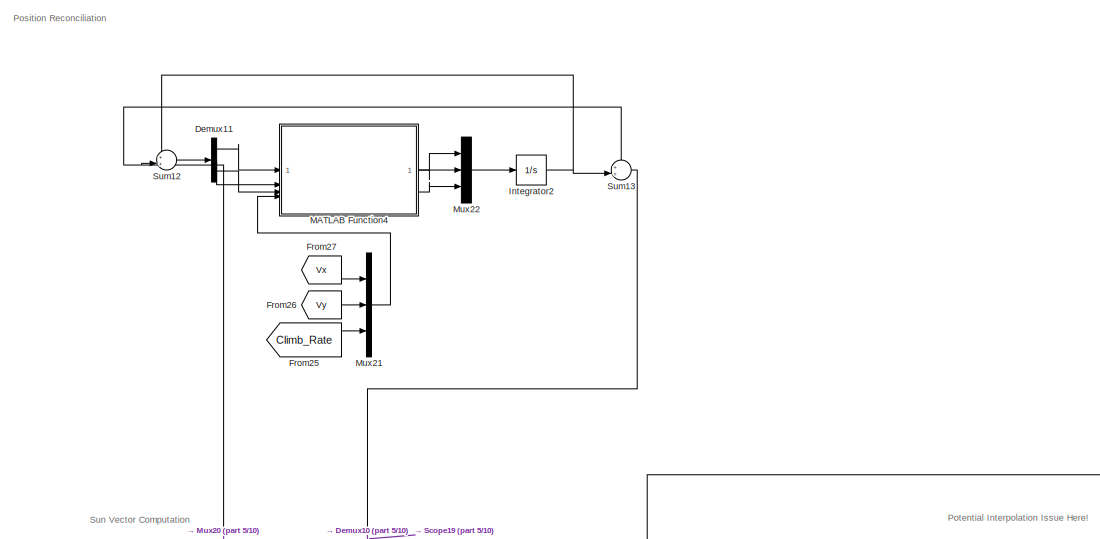
[diagram: root canvas - part 1/10, top right region]
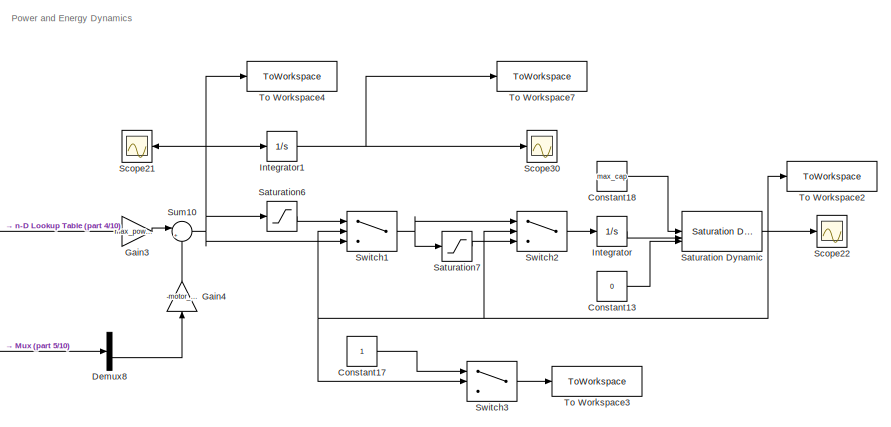
[diagram: root canvas - part 2/10, top right region]
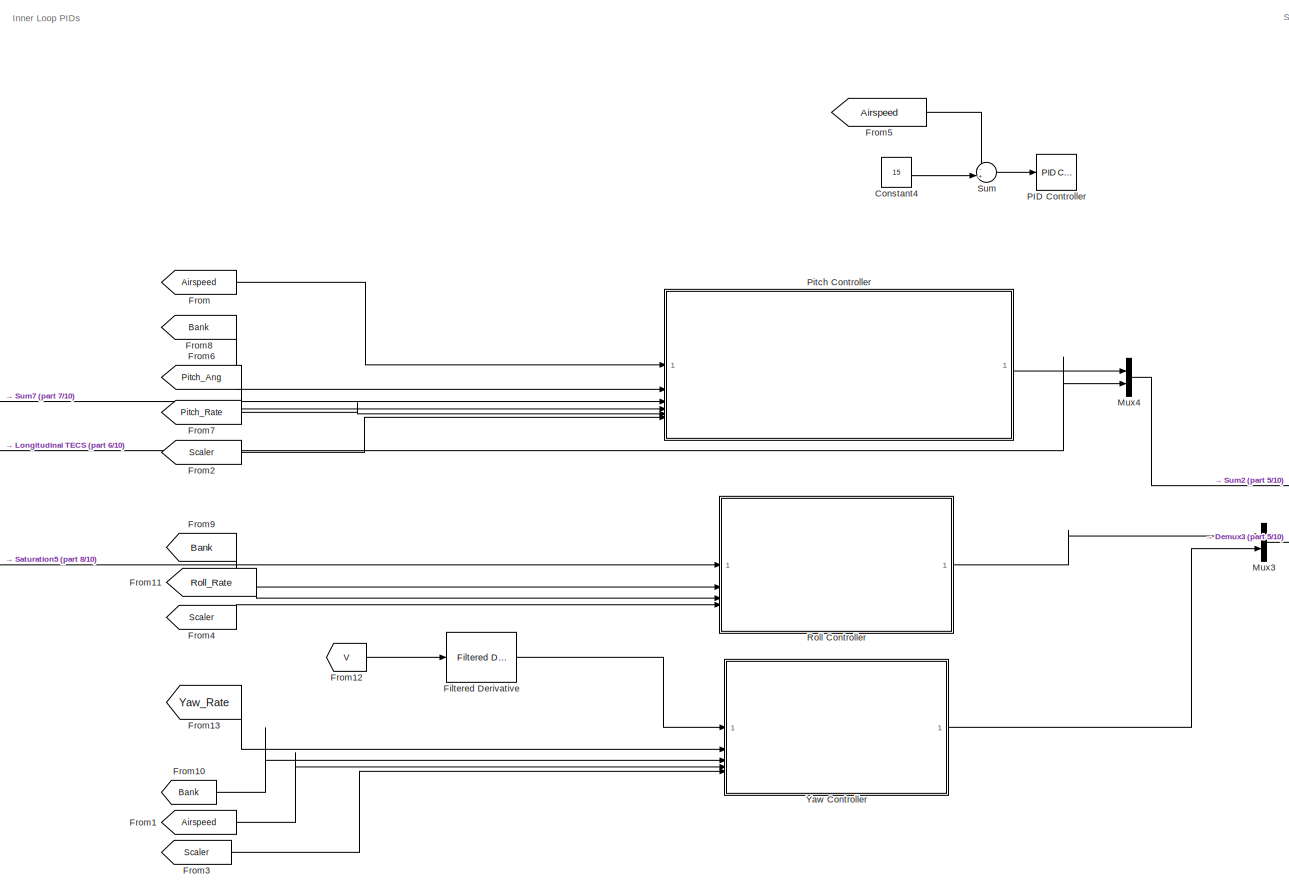
[diagram: root canvas - part 3/10, central region]
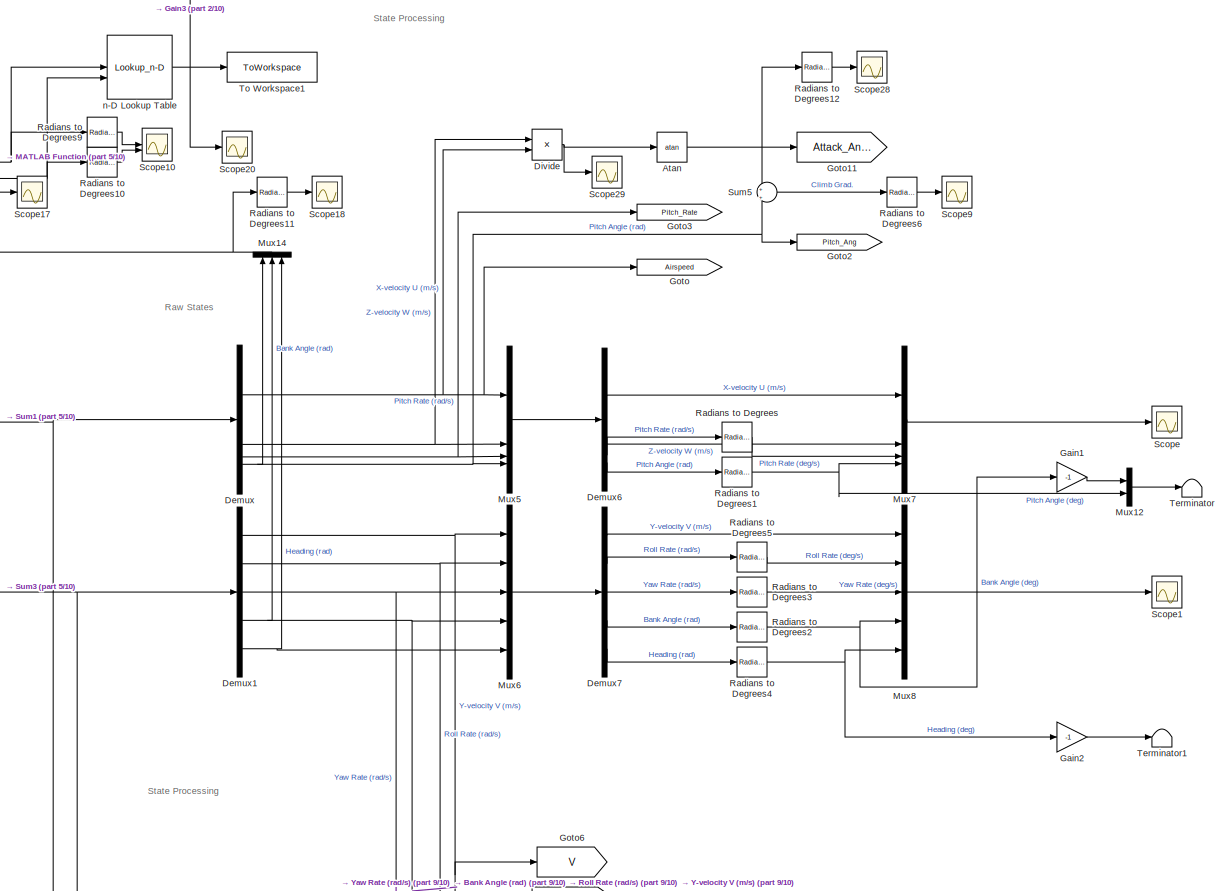
[diagram: root canvas - part 4/10, middle right region]
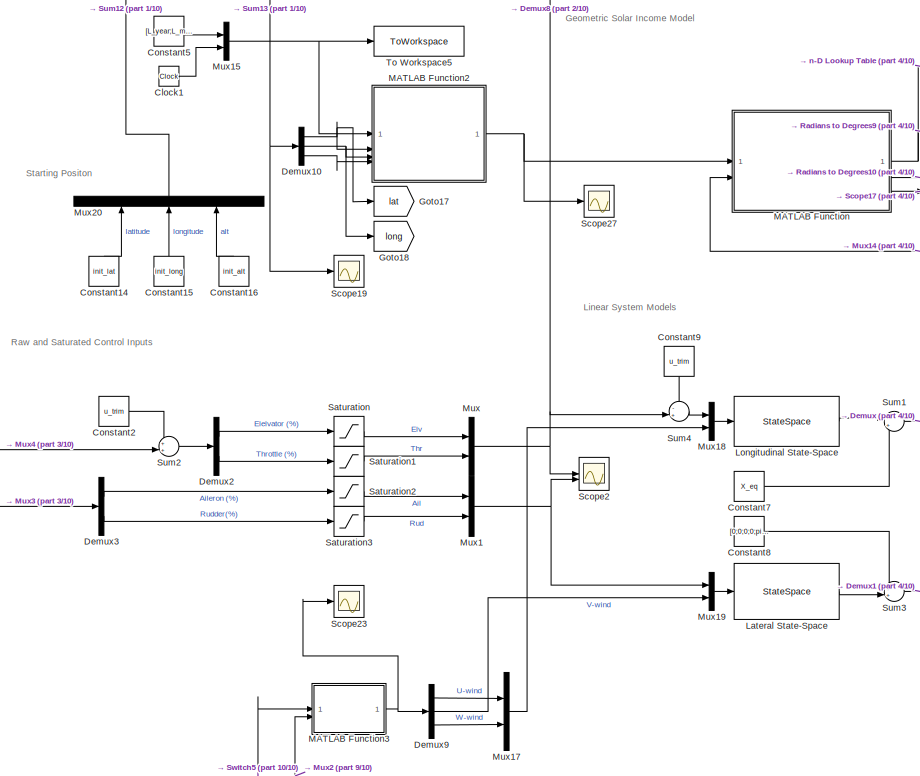
[diagram: root canvas - part 5/10, middle right region]
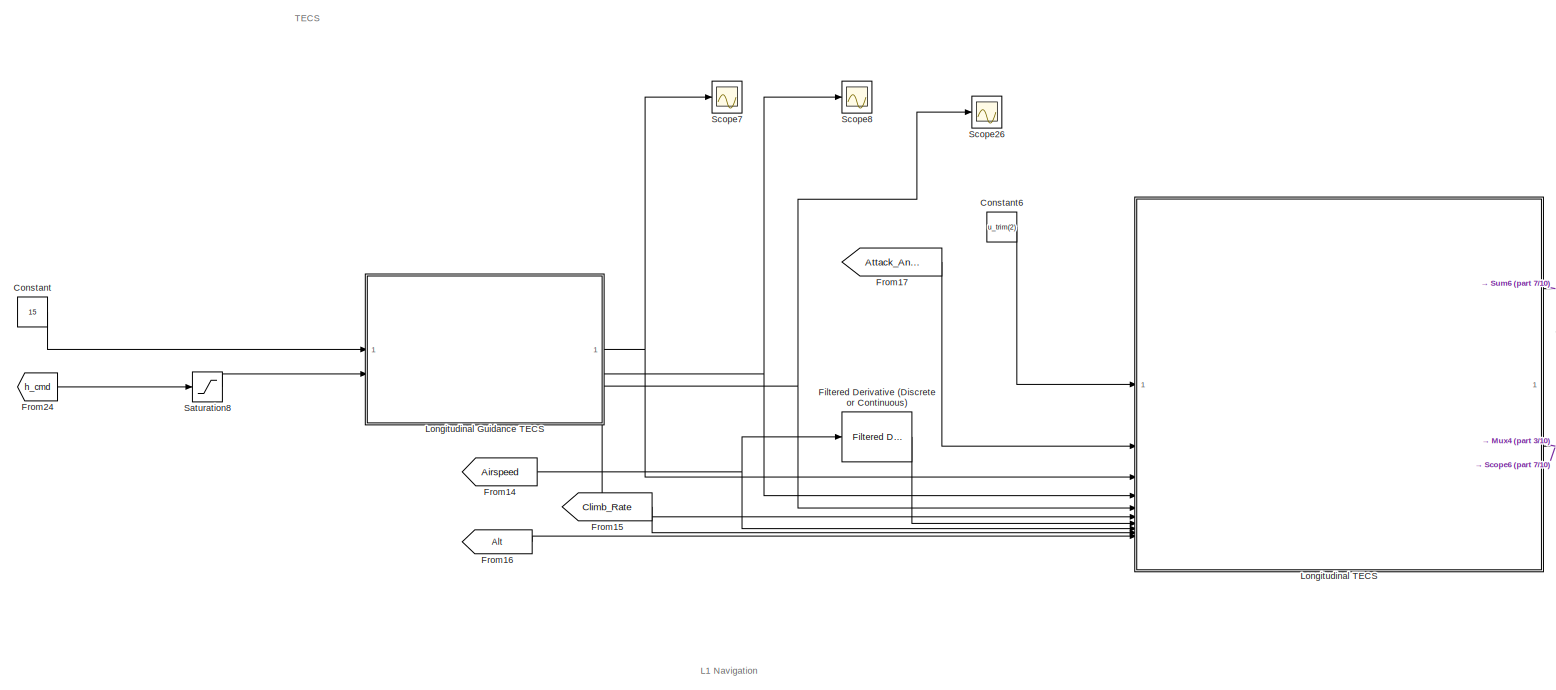
[diagram: root canvas - part 6/10, middle left region]
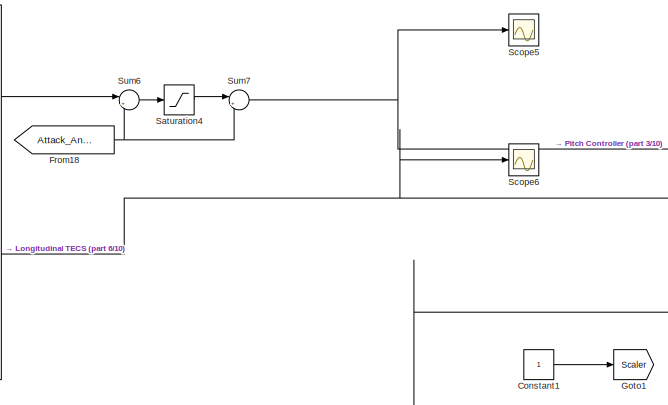
[diagram: root canvas - part 7/10, middle left region]
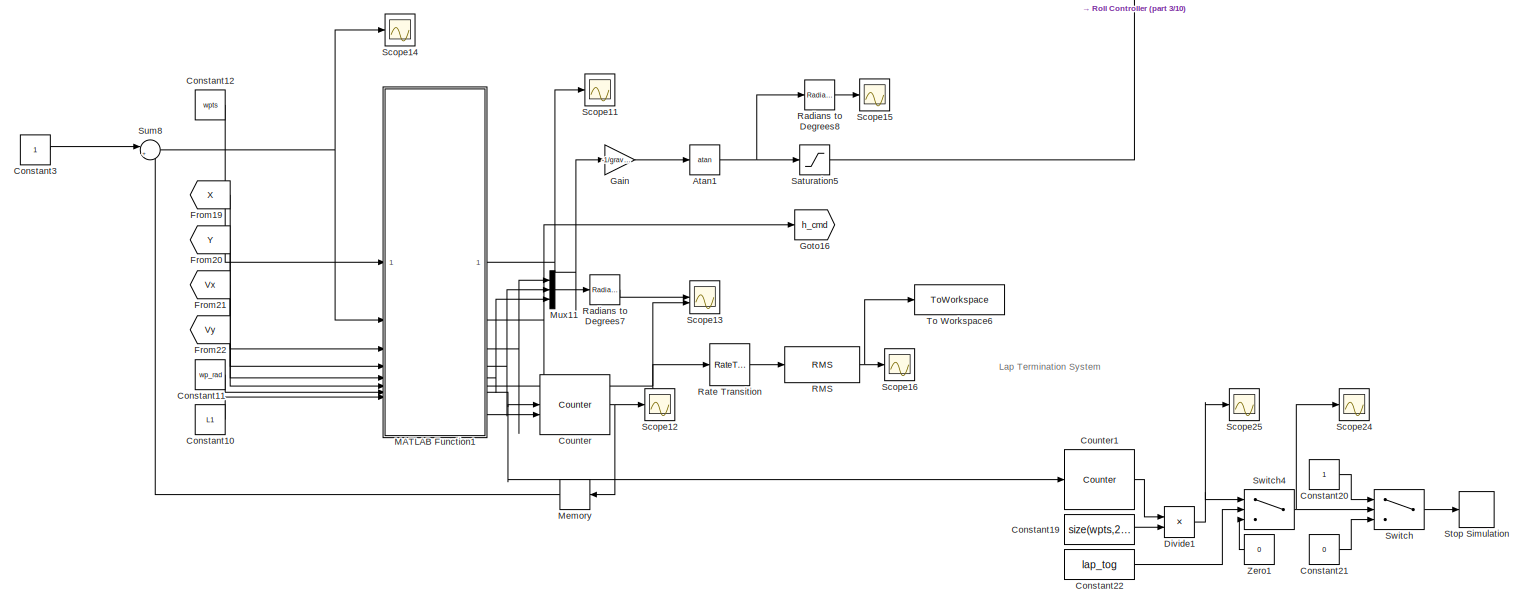
[diagram: root canvas - part 8/10, bottom left region]
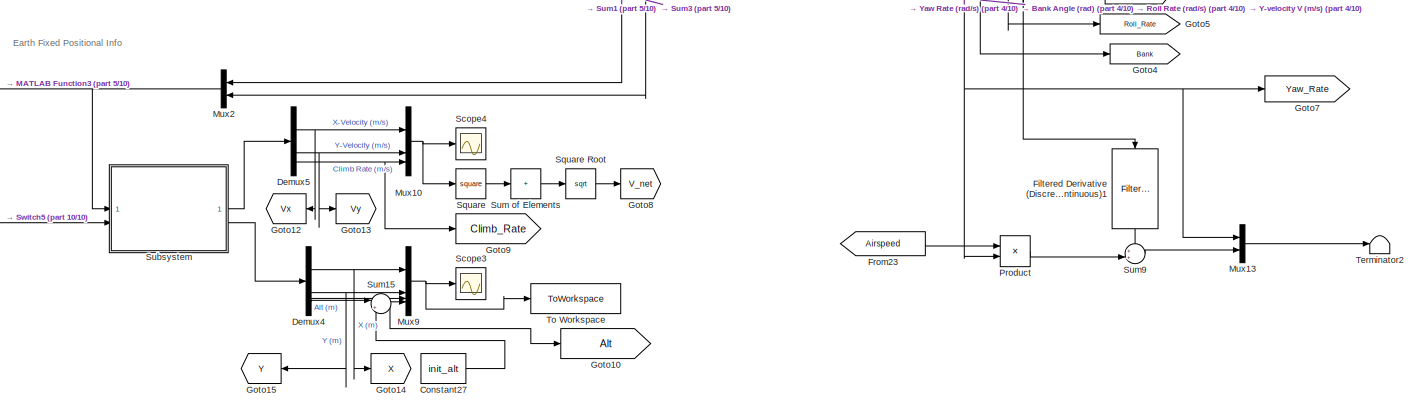
[diagram: root canvas - part 9/10, bottom right region]
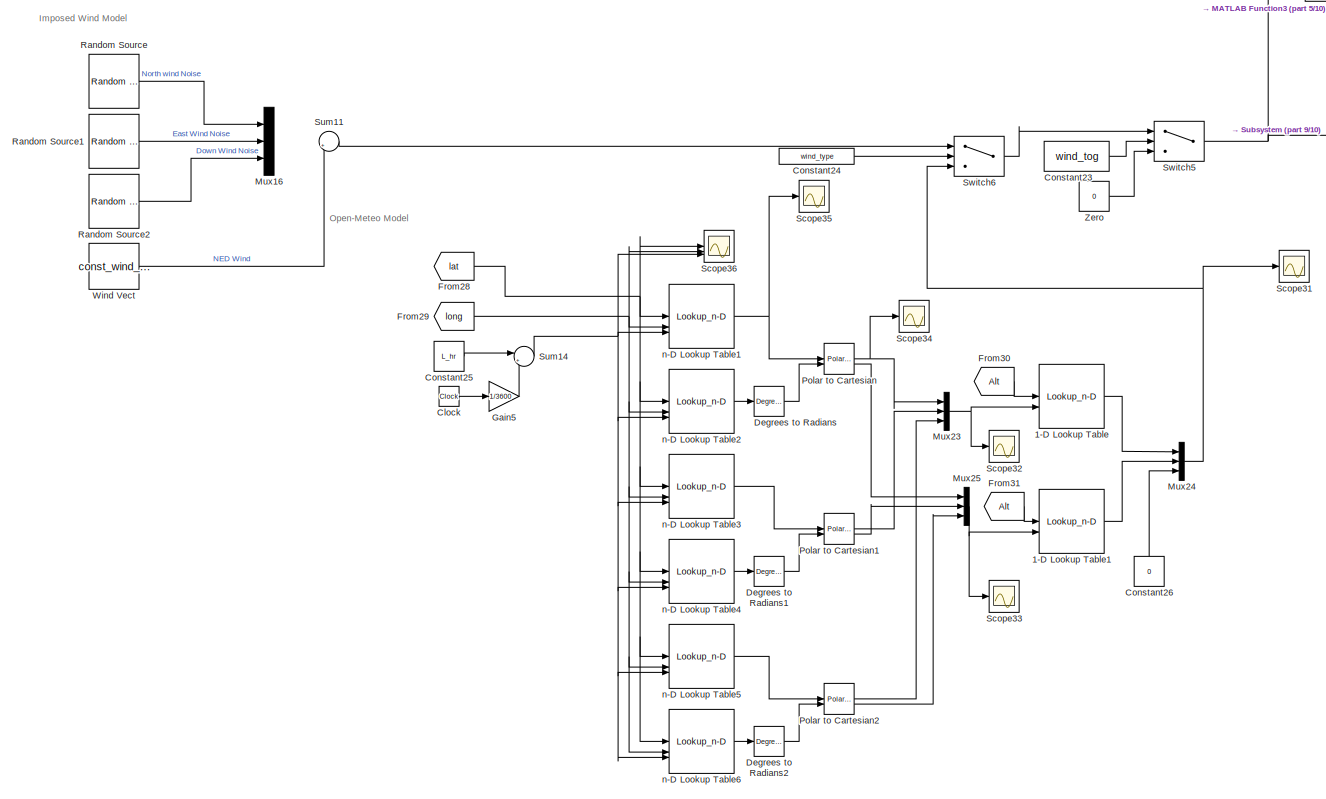
[diagram: root canvas - part 10/10, bottom center region]
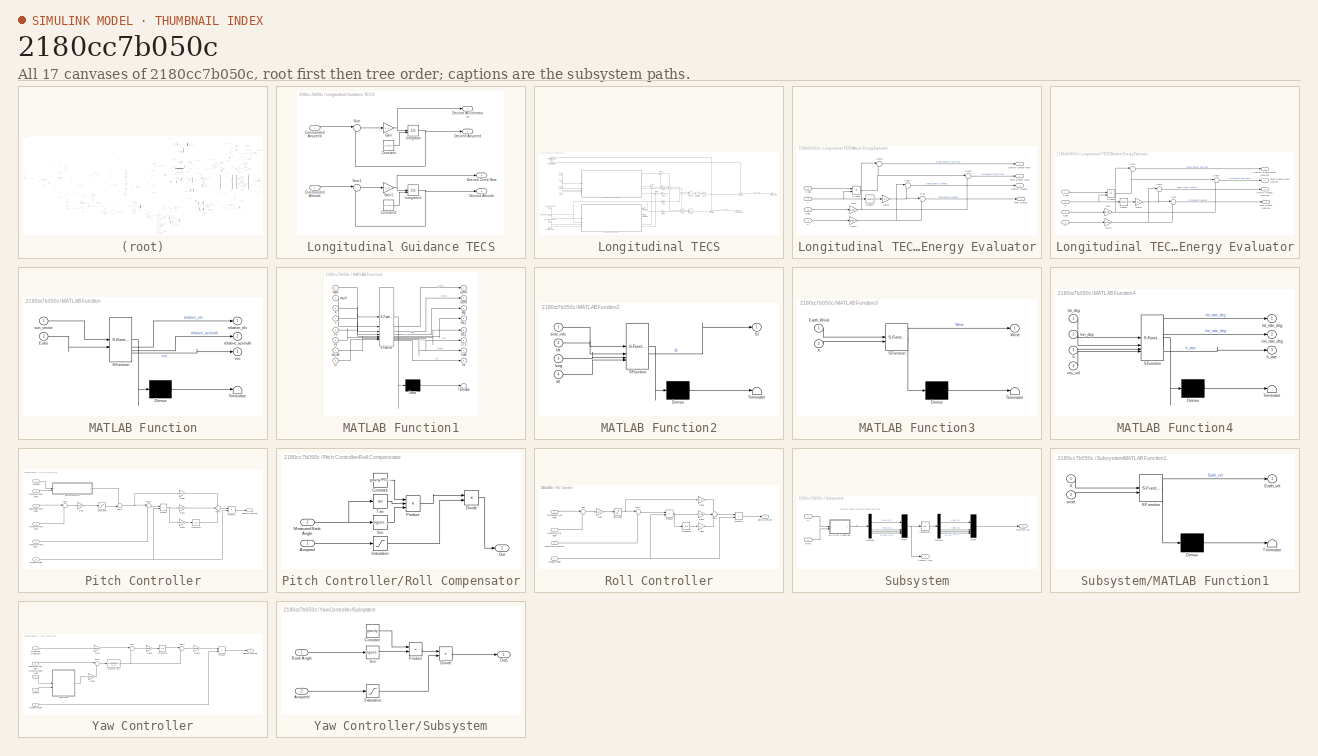
[diagram: thumbnail index - all 17 canvases of the model, root first then tree order]
MODEL slx_2180cc7b050c
KIND model
CONFIG AbsTol = auto
CONFIG EnableMultiTasking = off
CONFIG FixedStep = auto
CONFIG MaxStep = auto
CONFIG MinStep = auto
CONFIG RelTol = 1e-3
CONFIG SampleTimeConstraint = Unconstrained
CONFIG SolverName = VariableStepAuto
CONFIG StartTime = 0.0
CONFIG StopTime = 600
BLOCK [Lookup_n-D] 1-D Lookup Table
  BreakpointsForDimension1 = [10;80;120]
  ExtrapMethod = Clip
  InputPortMap = u0,p221
  InternalRulePriority = Speed
  InterpMethod = Cubic spline
  NumberOfTableDimensions = 1
  RndMeth = Simplest
  Table = Alt
  TableSource = Input port
BLOCK [Lookup_n-D] 1-D Lookup Table1
  BreakpointsForDimension1 = [10;80;120]
  ExtrapMethod = Clip
  InputPortMap = u0,p221
  InternalRulePriority = Speed
  InterpMethod = Cubic spline
  NumberOfTableDimensions = 1
  RndMeth = Simplest
  Table = Alt
  TableSource = Input port
BLOCK [Trigonometry] Atan
  Operator = atan
BLOCK [Trigonometry] Atan1
  Operator = atan
BLOCK [Clock] Clock
BLOCK [Clock] Clock1
BLOCK [Constant] Constant
  Value = 15
BLOCK [Constant] Constant1
BLOCK [Constant] Constant10
  Value = L1
BLOCK [Constant] Constant11
  Value = wp_rad
BLOCK [Constant] Constant12
  Value = wpts
  VectorParams1D = off
BLOCK [Constant] Constant13
  Value = 0
BLOCK [Constant] Constant14
  NameLocation = right
  Value = init_lat
BLOCK [Constant] Constant15
  NameLocation = right
  Value = init_long
BLOCK [Constant] Constant16
  NameLocation = right
  Value = init_alt
BLOCK [Constant] Constant17
BLOCK [Constant] Constant18
  Value = max_cap
BLOCK [Constant] Constant19
  Value = size(wpts,2)-1
BLOCK [Constant] Constant2
  Value = u_trim
BLOCK [Constant] Constant20
BLOCK [Constant] Constant21
  Value = 0
BLOCK [Constant] Constant22
  Value = lap_tog
BLOCK [Constant] Constant23
  Value = wind_tog
BLOCK [Constant] Constant24
  Value = wind_type
BLOCK [Constant] Constant25
  Value = L_hr
BLOCK [Constant] Constant26
  NameLocation = right
  Value = 0
BLOCK [Constant] Constant27
  Value = init_alt
BLOCK [Constant] Constant3
BLOCK [Constant] Constant4
  Value = 15
BLOCK [Constant] Constant5
  Value = [L_year;L_month;L_day;L_hr;0]
BLOCK [Constant] Constant6
  Value = u_trim(2)
BLOCK [Constant] Constant7
  Value = X_eq
BLOCK [Constant] Constant8
  Value = [0;0;0;0;pi/2]
BLOCK [Constant] Constant9
  NameLocation = left
  Value = u_trim
BLOCK [Reference] Counter  REF=dspswit3/Counter
  SourceBlock = dspswit3/Counter
  SourceType = Counter
BLOCK [Reference] Counter1  REF=dspswit3/Counter
  SourceBlock = dspswit3/Counter
  SourceType = Counter
BLOCK [Reference] Degrees to Radians  REF=simulink_extras/Transformations/Degrees to
Radians
  SourceBlock = simulink_extras/Transformations/Degrees to\nRadians
  SourceType = DegreesToRadians
BLOCK [Reference] Degrees to Radians1  REF=simulink_extras/Transformations/Degrees to
Radians
  SourceBlock = simulink_extras/Transformations/Degrees to\nRadians
  SourceType = DegreesToRadians
BLOCK [Reference] Degrees to Radians2  REF=simulink_extras/Transformations/Degrees to
Radians
  SourceBlock = simulink_extras/Transformations/Degrees to\nRadians
  SourceType = DegreesToRadians
BLOCK [Demux] Demux
BLOCK [Demux] Demux1
  Outputs = 5
BLOCK [Demux] Demux10
  Outputs = 3
BLOCK [Demux] Demux11
  Outputs = 3
BLOCK [Demux] Demux2
  Outputs = 2
BLOCK [Demux] Demux3
  Outputs = 2
BLOCK [Demux] Demux4
BLOCK [Demux] Demux5
BLOCK [Demux] Demux6
BLOCK [Demux] Demux7
  Outputs = 5
BLOCK [Demux] Demux8
  Outputs = 2
BLOCK [Demux] Demux9
  Outputs = 3
BLOCK [Product] Divide
  Inputs = */
BLOCK [Product] Divide1
  Inputs = */
BLOCK [Reference] Filtered Derivative   REF=eeGeneralControl/Filtered Derivative
(Discrete or Continuous)
  LibrarySourceBlock = ee_sl_lib/General Control/Filtered Derivative\n(Discrete or Continuous)
  SourceBlock = eeGeneralControl/Filtered Derivative\n(Discrete or Continuous)
  SourceType = Filtered Derivative (Discrete or Continuous)
BLOCK [Reference] Filtered Derivative (Discrete or Continuous)  REF=eeGeneralControl/Filtered Derivative
(Discrete or Continuous)
  LibrarySourceBlock = ee_sl_lib/General Control/Filtered Derivative\n(Discrete or Continuous)
  SourceBlock = eeGeneralControl/Filtered Derivative\n(Discrete or Continuous)
  SourceType = Filtered Derivative (Discrete or Continuous)
BLOCK [Reference] Filtered Derivative (Discrete or Continuous)1  REF=eeGeneralControl/Filtered Derivative
(Discrete or Continuous)
  LibrarySourceBlock = ee_sl_lib/General Control/Filtered Derivative\n(Discrete or Continuous)
  NameLocation = left
  SourceBlock = eeGeneralControl/Filtered Derivative\n(Discrete or Continuous)
  SourceType = Filtered Derivative (Discrete or Continuous)
BLOCK [From] From
  GotoTag = Airspeed
BLOCK [From] From1
  GotoTag = Airspeed
BLOCK [From] From10
  GotoTag = Bank
BLOCK [From] From11
  GotoTag = Roll_Rate
BLOCK [From] From12
  GotoTag = V
BLOCK [From] From13
  GotoTag = Yaw_Rate
BLOCK [From] From14
  GotoTag = Airspeed
BLOCK [From] From15
  GotoTag = Climb_Rate
BLOCK [From] From16
  GotoTag = Alt
BLOCK [From] From17
  GotoTag = Attack_Angle
BLOCK [From] From18
  GotoTag = Attack_Angle
BLOCK [From] From19
  GotoTag = X
BLOCK [From] From2
  GotoTag = Scaler
BLOCK [From] From20
  GotoTag = Y
BLOCK [From] From21
  GotoTag = Vx
BLOCK [From] From22
  GotoTag = Vy
BLOCK [From] From23
  GotoTag = Airspeed
BLOCK [From] From24
  GotoTag = h_cmd
BLOCK [From] From25
  GotoTag = Climb_Rate
BLOCK [From] From26
  GotoTag = Vy
BLOCK [From] From27
  GotoTag = Vx
BLOCK [From] From28
  GotoTag = lat
BLOCK [From] From29
  GotoTag = long
BLOCK [From] From3
  GotoTag = Scaler
BLOCK [From] From30
  GotoTag = Alt
BLOCK [From] From31
  GotoTag = Alt
BLOCK [From] From4
  GotoTag = Scaler
BLOCK [From] From5
  GotoTag = Airspeed
BLOCK [From] From6
  GotoTag = Pitch_Ang
BLOCK [From] From7
  GotoTag = Pitch_Rate
BLOCK [From] From8
  GotoTag = Bank
BLOCK [From] From9
  GotoTag = Bank
BLOCK [Gain] Gain
  Gain = -1/gravity
BLOCK [Gain] Gain1
  Gain = -1
BLOCK [Gain] Gain2
  Gain = -1
BLOCK [Gain] Gain3
  Gain = max_power_income
BLOCK [Gain] Gain4
  Gain = -motor_power
  NameLocation = right
BLOCK [Gain] Gain5
  Gain = 1/3600
BLOCK [Goto] Goto
  GotoTag = Airspeed
BLOCK [Goto] Goto1
  GotoTag = Scaler
BLOCK [Goto] Goto10
  GotoTag = Alt
BLOCK [Goto] Goto11
  GotoTag = Attack_Angle
BLOCK [Goto] Goto12
  GotoTag = Vx
BLOCK [Goto] Goto13
  GotoTag = Vy
BLOCK [Goto] Goto14
  GotoTag = X
BLOCK [Goto] Goto15
  GotoTag = Y
BLOCK [Goto] Goto16
  GotoTag = h_cmd
BLOCK [Goto] Goto17
  GotoTag = lat
BLOCK [Goto] Goto18
  GotoTag = long
BLOCK [Goto] Goto2
  GotoTag = Pitch_Ang
BLOCK [Goto] Goto3
  GotoTag = Pitch_Rate
BLOCK [Goto] Goto4
  GotoTag = Bank
BLOCK [Goto] Goto5
  GotoTag = Roll_Rate
BLOCK [Goto] Goto6
  GotoTag = V
BLOCK [Goto] Goto7
  GotoTag = Yaw_Rate
BLOCK [Goto] Goto8
  GotoTag = V_net
BLOCK [Goto] Goto9
  GotoTag = Climb_Rate
BLOCK [Integrator] Integrator
  InitialCondition = max_cap
BLOCK [Integrator] Integrator1
BLOCK [Integrator] Integrator2
BLOCK [StateSpace] Lateral State-Space
  A = A_lat
  B = [B_lat A_lat(:,1)]
  C = eye(5)
  D = zeros(size([B_lat A_lat(:,1)]))
  InitialCondition = 0
BLOCK [SubSystem] Longitudinal Guidance TECS
BLOCK [Inport] Longitudinal Guidance TECS/Commanded Airspeed
BLOCK [Inport] Longitudinal Guidance TECS/Commanded Altitude
  Port = 2
BLOCK [Constant] Longitudinal Guidance TECS/Constant
  Value = V_INIT
BLOCK [Constant] Longitudinal Guidance TECS/Constant1
  Value = H_INIT
BLOCK [Outport] Longitudinal Guidance TECS/Desired Acceleration
BLOCK [Outport] Longitudinal Guidance TECS/Desired Airspeed
  Port = 2
BLOCK [Outport] Longitudinal Guidance TECS/Desired Altitude
  Port = 4
BLOCK [Outport] Longitudinal Guidance TECS/Desired Climb Rate
  Port = 3
BLOCK [Gain] Longitudinal Guidance TECS/Gain
  Gain = K_V
BLOCK [Gain] Longitudinal Guidance TECS/Gain1
  Gain = K_H
BLOCK [Integrator] Longitudinal Guidance TECS/Integrator
  InitialConditionSource = external
BLOCK [Integrator] Longitudinal Guidance TECS/Integrator1
  InitialConditionSource = external
BLOCK [Sum] Longitudinal Guidance TECS/Sum
  Inputs = |+-
BLOCK [Sum] Longitudinal Guidance TECS/Sum1
  Inputs = |+-
BLOCK [StateSpace] Longitudinal State-Space
  A = A_long
  B = [B_long A_long(:,1:2)]
  C = eye(4)
  D = zeros(size([B_long A_long(:,1:2)]))
  InitialCondition = 0
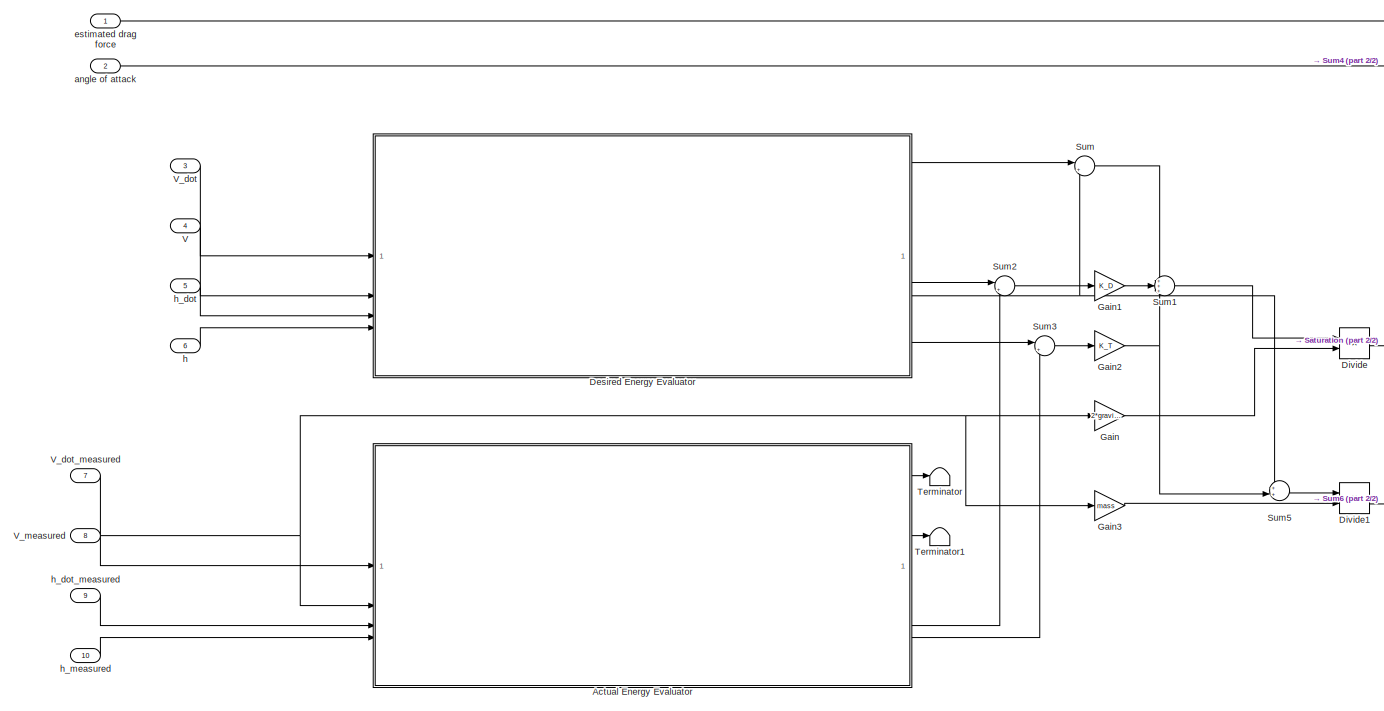
[diagram: Longitudinal TECS - part 1/2, left side, full height]
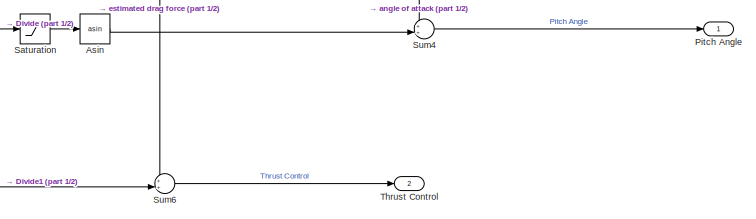
[diagram: Longitudinal TECS - part 2/2, middle right region]
BLOCK [SubSystem] Longitudinal TECS
BLOCK [SubSystem] Longitudinal TECS/Actual Energy Evaluator
BLOCK [Outport] Longitudinal TECS/Actual Energy Evaluator/Deficit Energy
  Port = 3
BLOCK [Outport] Longitudinal TECS/Actual Energy Evaluator/Deficit Energy Rate
BLOCK [Gain] Longitudinal TECS/Actual Energy Evaluator/Gain
  Gain = gravity
BLOCK [Gain] Longitudinal TECS/Actual Energy Evaluator/Gain1
  Gain = gravity
BLOCK [Gain] Longitudinal TECS/Actual Energy Evaluator/Gain2
  Gain = 0.5
BLOCK [Product] Longitudinal TECS/Actual Energy Evaluator/Product
BLOCK [Math] Longitudinal TECS/Actual Energy Evaluator/Square
  Operator = square
BLOCK [Sum] Longitudinal TECS/Actual Energy Evaluator/Sum
  Inputs = |++
BLOCK [Sum] Longitudinal TECS/Actual Energy Evaluator/Sum1
  Inputs = |+-
BLOCK [Sum] Longitudinal TECS/Actual Energy Evaluator/Sum2
  Inputs = |++
BLOCK [Sum] Longitudinal TECS/Actual Energy Evaluator/Sum3
  Inputs = |+-
BLOCK [Outport] Longitudinal TECS/Actual Energy Evaluator/Total Energy
  Port = 4
BLOCK [Outport] Longitudinal TECS/Actual Energy Evaluator/Total Energy Rate
  Port = 2
BLOCK [Inport] Longitudinal TECS/Actual Energy Evaluator/V
  Port = 2
BLOCK [Inport] Longitudinal TECS/Actual Energy Evaluator/V_dot
BLOCK [Inport] Longitudinal TECS/Actual Energy Evaluator/h
  Port = 4
BLOCK [Inport] Longitudinal TECS/Actual Energy Evaluator/h_dot
  Port = 3
BLOCK [Trigonometry] Longitudinal TECS/Asin
  Operator = asin
BLOCK [SubSystem] Longitudinal TECS/Desired Energy Evaluator
BLOCK [Outport] Longitudinal TECS/Desired Energy Evaluator/Deficit Energy Desired
  Port = 3
BLOCK [Outport] Longitudinal TECS/Desired Energy Evaluator/Deficit Energy Rate Desired
BLOCK [Gain] Longitudinal TECS/Desired Energy Evaluator/Gain
  Gain = gravity
BLOCK [Gain] Longitudinal TECS/Desired Energy Evaluator/Gain1
  Gain = gravity
BLOCK [Gain] Longitudinal TECS/Desired Energy Evaluator/Gain2
  Gain = 0.5
BLOCK [Product] Longitudinal TECS/Desired Energy Evaluator/Product
BLOCK [Math] Longitudinal TECS/Desired Energy Evaluator/Square
  Operator = square
BLOCK [Sum] Longitudinal TECS/Desired Energy Evaluator/Sum
  Inputs = |++
BLOCK [Sum] Longitudinal TECS/Desired Energy Evaluator/Sum1
  Inputs = |+-
BLOCK [Sum] Longitudinal TECS/Desired Energy Evaluator/Sum2
  Inputs = |++
BLOCK [Sum] Longitudinal TECS/Desired Energy Evaluator/Sum3
  Inputs = |+-
BLOCK [Outport] Longitudinal TECS/Desired Energy Evaluator/Total Energy Desired
  Port = 4
BLOCK [Outport] Longitudinal TECS/Desired Energy Evaluator/Total Energy Rate Desired
  Port = 2
BLOCK [Inport] Longitudinal TECS/Desired Energy Evaluator/V
  Port = 2
BLOCK [Inport] Longitudinal TECS/Desired Energy Evaluator/V_dot
BLOCK [Inport] Longitudinal TECS/Desired Energy Evaluator/h
  Port = 4
BLOCK [Inport] Longitudinal TECS/Desired Energy Evaluator/h_dot
  Port = 3
BLOCK [Product] Longitudinal TECS/Divide
  Inputs = */
BLOCK [Product] Longitudinal TECS/Divide1
  Inputs = */
BLOCK [Gain] Longitudinal TECS/Gain
  Gain = 2*gravity
BLOCK [Gain] Longitudinal TECS/Gain1
  Gain = K_D
BLOCK [Gain] Longitudinal TECS/Gain2
  Gain = K_T
BLOCK [Gain] Longitudinal TECS/Gain3
  Gain = mass
BLOCK [Outport] Longitudinal TECS/Pitch Angle
BLOCK [Saturate] Longitudinal TECS/Saturation
  LowerLimit = -1
  UpperLimit = 1
BLOCK [Sum] Longitudinal TECS/Sum
  Inputs = |++
BLOCK [Sum] Longitudinal TECS/Sum1
  Inputs = +++
BLOCK [Sum] Longitudinal TECS/Sum2
  Inputs = |+-
BLOCK [Sum] Longitudinal TECS/Sum3
  Inputs = |+-
BLOCK [Sum] Longitudinal TECS/Sum4
  Inputs = ++|
BLOCK [Sum] Longitudinal TECS/Sum5
  Inputs = ++|
BLOCK [Sum] Longitudinal TECS/Sum6
  Inputs = ++|
BLOCK [Terminator] Longitudinal TECS/Terminator
BLOCK [Terminator] Longitudinal TECS/Terminator1
BLOCK [Outport] Longitudinal TECS/Thrust Control
  Port = 2
BLOCK [Inport] Longitudinal TECS/V
  Port = 4
BLOCK [Inport] Longitudinal TECS/V_dot
  Port = 3
BLOCK [Inport] Longitudinal TECS/V_dot_measured
  Port = 7
BLOCK [Inport] Longitudinal TECS/V_measured
  Port = 8
BLOCK [Inport] Longitudinal TECS/angle of attack
  Port = 2
BLOCK [Inport] Longitudinal TECS/estimated drag force
BLOCK [Inport] Longitudinal TECS/h
  Port = 6
BLOCK [Inport] Longitudinal TECS/h_dot
  Port = 5
BLOCK [Inport] Longitudinal TECS/h_dot_measured
  Port = 9
BLOCK [Inport] Longitudinal TECS/h_measured
  Port = 10
BLOCK [SubSystem] MATLAB Function
  ErrorFcn = Stateflow.Translate.translate
  PermitHierarchicalResolution = ExplicitOnly
  SFBlockType = MATLAB Function
  TreatAsAtomicUnit = on
BLOCK [Demux] MATLAB Function/ Demux 
  Outputs = 1
BLOCK [S-Function] MATLAB Function/ SFunction 
  EnableBusSupport = on
  FunctionName = sf_sfun
  PortCounts = [2 4]
  SFcnIsStateOwnerBlock = off
  SFunctionDeploymentMode = off
  Tag = Stateflow S-Function 1
BLOCK [Terminator] MATLAB Function/ Terminator 
BLOCK [Inport] MATLAB Function/Euler
  Port = 2
BLOCK [Outport] MATLAB Function/relative_azimuth
  Port = 2
BLOCK [Outport] MATLAB Function/relative_elv
BLOCK [Inport] MATLAB Function/sun_vector
BLOCK [Outport] MATLAB Function/vec
  Port = 3
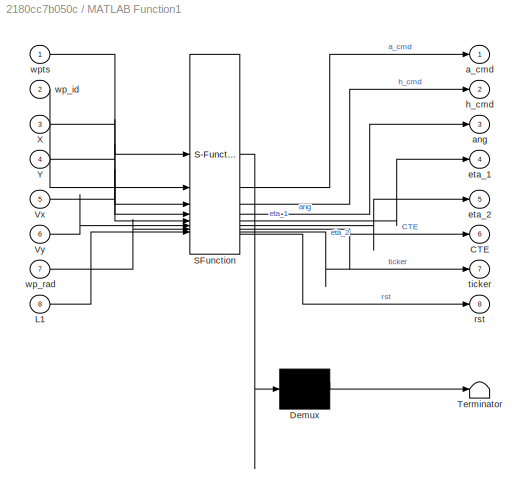
BLOCK [SubSystem] MATLAB Function1
  ErrorFcn = Stateflow.Translate.translate
  PermitHierarchicalResolution = ExplicitOnly
  SFBlockType = MATLAB Function
  TreatAsAtomicUnit = on
BLOCK [Demux] MATLAB Function1/ Demux 
  Outputs = 1
BLOCK [S-Function] MATLAB Function1/ SFunction 
  EnableBusSupport = on
  FunctionName = sf_sfun
  PortCounts = [8 9]
  SFcnIsStateOwnerBlock = off
  SFunctionDeploymentMode = off
  Tag = Stateflow S-Function 3
BLOCK [Terminator] MATLAB Function1/ Terminator 
BLOCK [Outport] MATLAB Function1/CTE
  Port = 6
BLOCK [Inport] MATLAB Function1/L1
  Port = 8
BLOCK [Inport] MATLAB Function1/Vx
  Port = 5
BLOCK [Inport] MATLAB Function1/Vy
  Port = 6
BLOCK [Inport] MATLAB Function1/X
  Port = 3
BLOCK [Inport] MATLAB Function1/Y
  Port = 4
BLOCK [Outport] MATLAB Function1/a_cmd
BLOCK [Outport] MATLAB Function1/ang
  Port = 3
BLOCK [Outport] MATLAB Function1/eta_1
  Port = 4
BLOCK [Outport] MATLAB Function1/eta_2
  Port = 5
BLOCK [Outport] MATLAB Function1/h_cmd
  Port = 2
BLOCK [Outport] MATLAB Function1/rst
  Port = 8
BLOCK [Outport] MATLAB Function1/ticker
  Port = 7
BLOCK [Inport] MATLAB Function1/wp_id
  Port = 2
BLOCK [Inport] MATLAB Function1/wp_rad
  Port = 7
BLOCK [Inport] MATLAB Function1/wpts
BLOCK [SubSystem] MATLAB Function2
  ErrorFcn = Stateflow.Translate.translate
  PermitHierarchicalResolution = ExplicitOnly
  SFBlockType = MATLAB Function
  TreatAsAtomicUnit = on
BLOCK [Demux] MATLAB Function2/ Demux 
  Outputs = 1
BLOCK [S-Function] MATLAB Function2/ SFunction 
  EnableBusSupport = on
  FunctionName = sf_sfun
  PortCounts = [4 2]
  SFcnIsStateOwnerBlock = off
  SFunctionDeploymentMode = off
  Tag = Stateflow S-Function 4
BLOCK [Terminator] MATLAB Function2/ Terminator 
BLOCK [Outport] MATLAB Function2/SI
BLOCK [Inport] MATLAB Function2/alt
  Port = 4
BLOCK [Inport] MATLAB Function2/lat
  Port = 2
BLOCK [Inport] MATLAB Function2/long
  Port = 3
BLOCK [Inport] MATLAB Function2/time_info
BLOCK [SubSystem] MATLAB Function3
  ErrorFcn = Stateflow.Translate.translate
  PermitHierarchicalResolution = ExplicitOnly
  SFBlockType = MATLAB Function
  TreatAsAtomicUnit = on
BLOCK [Demux] MATLAB Function3/ Demux 
  Outputs = 1
BLOCK [S-Function] MATLAB Function3/ SFunction 
  EnableBusSupport = on
  FunctionName = sf_sfun
  PortCounts = [2 2]
  SFcnIsStateOwnerBlock = off
  SFunctionDeploymentMode = off
  Tag = Stateflow S-Function 5
BLOCK [Terminator] MATLAB Function3/ Terminator 
BLOCK [Inport] MATLAB Function3/Earth_Wind
BLOCK [Outport] MATLAB Function3/Wind
BLOCK [Inport] MATLAB Function3/X
  Port = 2
BLOCK [SubSystem] MATLAB Function4
  ErrorFcn = Stateflow.Translate.translate
  PermitHierarchicalResolution = ExplicitOnly
  SFBlockType = MATLAB Function
  TreatAsAtomicUnit = on
BLOCK [Demux] MATLAB Function4/ Demux 
  Outputs = 1
BLOCK [S-Function] MATLAB Function4/ SFunction 
  EnableBusSupport = on
  FunctionName = sf_sfun
  PortCounts = [4 4]
  SFcnIsStateOwnerBlock = off
  SFunctionDeploymentMode = off
  Tag = Stateflow S-Function 7
BLOCK [Terminator] MATLAB Function4/ Terminator 
BLOCK [Inport] MATLAB Function4/h
  Port = 3
BLOCK [Outport] MATLAB Function4/h_rate
  Port = 3
BLOCK [Inport] MATLAB Function4/lat_deg
BLOCK [Outport] MATLAB Function4/lat_rate_deg
BLOCK [Inport] MATLAB Function4/lon_deg
  Port = 2
BLOCK [Outport] MATLAB Function4/lon_rate_deg
  Port = 2
BLOCK [Inport] MATLAB Function4/neu_vel
  Port = 4
BLOCK [Memory] Memory
BLOCK [Mux] Mux
  DisplayOption = bar
  Inputs = 2
BLOCK [Mux] Mux1
  DisplayOption = bar
  Inputs = 2
BLOCK [Mux] Mux10
  DisplayOption = bar
BLOCK [Mux] Mux11
  DisplayOption = bar
  Inputs = 3
BLOCK [Mux] Mux12
  DisplayOption = bar
  Inputs = 2
BLOCK [Mux] Mux13
  DisplayOption = bar
  Inputs = 2
BLOCK [Mux] Mux14
  DisplayOption = bar
  Inputs = 3
  NameLocation = right
BLOCK [Mux] Mux15
  DisplayOption = bar
  Inputs = 2
BLOCK [Mux] Mux16
  DisplayOption = bar
  Inputs = 3
BLOCK [Mux] Mux17
  DisplayOption = bar
  Inputs = 2
BLOCK [Mux] Mux18
  DisplayOption = bar
  Inputs = 2
BLOCK [Mux] Mux19
  DisplayOption = bar
  Inputs = 2
BLOCK [Mux] Mux2
  DisplayOption = bar
  Inputs = 2
BLOCK [Mux] Mux20
  DisplayOption = bar
  Inputs = 3
  NameLocation = right
BLOCK [Mux] Mux21
  DisplayOption = bar
  Inputs = 3
BLOCK [Mux] Mux22
  DisplayOption = bar
  Inputs = 3
BLOCK [Mux] Mux23
  DisplayOption = bar
  Inputs = 3
BLOCK [Mux] Mux24
  DisplayOption = bar
  Inputs = 3
BLOCK [Mux] Mux25
  DisplayOption = bar
  Inputs = 3
BLOCK [Mux] Mux3
  DisplayOption = bar
  Inputs = 2
BLOCK [Mux] Mux4
  DisplayOption = bar
  Inputs = 2
BLOCK [Mux] Mux5
  DisplayOption = bar
BLOCK [Mux] Mux6
  DisplayOption = bar
  Inputs = 5
BLOCK [Mux] Mux7
  DisplayOption = bar
BLOCK [Mux] Mux8
  DisplayOption = bar
  Inputs = 5
BLOCK [Mux] Mux9
  DisplayOption = bar
BLOCK [Reference] PID Controller  REF=slpidlib/PID Controller
  LibrarySourceBlock = simulink/Continuous/PID Controller
  SourceBlock = slpidlib/PID Controller
  SourceType = PID 1dof
BLOCK [SubSystem] Pitch Controller
BLOCK [Inport] Pitch Controller/Airspeed
BLOCK [Inport] Pitch Controller/Airspeed Scaler
  Port = 6
BLOCK [Inport] Pitch Controller/Demanded Pitch Angle
  Port = 3
BLOCK [Outport] Pitch Controller/Elevator Demand
BLOCK [Gain] Pitch Controller/Gain
  Gain = 1/PTCH2SRV_TCONST
BLOCK [Gain] Pitch Controller/Gain1
  Gain = PTCH2SRV_D
BLOCK [Gain] Pitch Controller/Gain2
  Gain = PTCH_K_P
BLOCK [Gain] Pitch Controller/Gain3
  Gain = PTCH_K_I
BLOCK [Integrator] Pitch Controller/Integrator
BLOCK [Inport] Pitch Controller/Measured Bank Angle
  Port = 2
BLOCK [Inport] Pitch Controller/Measured Pitch Angle
  Port = 4
BLOCK [Inport] Pitch Controller/Measured Pitch Rate
  Port = 5
BLOCK [Product] Pitch Controller/Product
BLOCK [Product] Pitch Controller/Product1
BLOCK [SubSystem] Pitch Controller/Roll Compensator
BLOCK [Inport] Pitch Controller/Roll Compensator/Airspeed
BLOCK [Constant] Pitch Controller/Roll Compensator/Constant
  Value = gravity*PTCH2SRV_RLL
BLOCK [Product] Pitch Controller/Roll Compensator/Divide
  Inputs = */
BLOCK [Inport] Pitch Controller/Roll Compensator/Measured Bank Angle
  Port = 2
BLOCK [Outport] Pitch Controller/Roll Compensator/Out
BLOCK [Product] Pitch Controller/Roll Compensator/Product
  Inputs = 3
BLOCK [Saturate] Pitch Controller/Roll Compensator/Saturation
  LowerLimit = aspd_min
  UpperLimit = inf
BLOCK [Trigonometry] Pitch Controller/Roll Compensator/Sin
BLOCK [Trigonometry] Pitch Controller/Roll Compensator/Tan
  Operator = tan
BLOCK [Saturate] Pitch Controller/Saturation
  LowerLimit = PTCH2SRV_RMAX_DN
  UpperLimit = PTCH2SRV_RMAX_UP
BLOCK [Sum] Pitch Controller/Sum
  Inputs = |+-
BLOCK [Sum] Pitch Controller/Sum1
  Inputs = ++|
BLOCK [Sum] Pitch Controller/Sum2
  Inputs = |+-
BLOCK [Sum] Pitch Controller/Sum3
  Inputs = +++
BLOCK [Reference] Polar to Cartesian  REF=simulink_extras/Transformations/Polar to
Cartesian
  SourceBlock = simulink_extras/Transformations/Polar to\nCartesian
  SourceType = Polar2Cart
BLOCK [Reference] Polar to Cartesian1  REF=simulink_extras/Transformations/Polar to
Cartesian
  SourceBlock = simulink_extras/Transformations/Polar to\nCartesian
  SourceType = Polar2Cart
BLOCK [Reference] Polar to Cartesian2  REF=simulink_extras/Transformations/Polar to
Cartesian
  SourceBlock = simulink_extras/Transformations/Polar to\nCartesian
  SourceType = Polar2Cart
BLOCK [Product] Product
BLOCK [Reference] RMS  REF=dspstat3/RMS
  SourceBlock = dspstat3/RMS
  SourceType = RMS
  UserDataPersistent = on
BLOCK [Reference] Radians to Degrees  REF=simulink_extras/Transformations/Radians
to Degrees
  SourceBlock = simulink_extras/Transformations/Radians\nto Degrees
  SourceType = RadiansToDegrees
BLOCK [Reference] Radians to Degrees1  REF=simulink_extras/Transformations/Radians
to Degrees
  SourceBlock = simulink_extras/Transformations/Radians\nto Degrees
  SourceType = RadiansToDegrees
BLOCK [Reference] Radians to Degrees10  REF=simulink_extras/Transformations/Radians
to Degrees
  SourceBlock = simulink_extras/Transformations/Radians\nto Degrees
  SourceType = RadiansToDegrees
BLOCK [Reference] Radians to Degrees11  REF=simulink_extras/Transformations/Radians
to Degrees
  SourceBlock = simulink_extras/Transformations/Radians\nto Degrees
  SourceType = RadiansToDegrees
BLOCK [Reference] Radians to Degrees12  REF=simulink_extras/Transformations/Radians
to Degrees
  SourceBlock = simulink_extras/Transformations/Radians\nto Degrees
  SourceType = RadiansToDegrees
BLOCK [Reference] Radians to Degrees2  REF=simulink_extras/Transformations/Radians
to Degrees
  SourceBlock = simulink_extras/Transformations/Radians\nto Degrees
  SourceType = RadiansToDegrees
BLOCK [Reference] Radians to Degrees3  REF=simulink_extras/Transformations/Radians
to Degrees
  SourceBlock = simulink_extras/Transformations/Radians\nto Degrees
  SourceType = RadiansToDegrees
BLOCK [Reference] Radians to Degrees4  REF=simulink_extras/Transformations/Radians
to Degrees
  SourceBlock = simulink_extras/Transformations/Radians\nto Degrees
  SourceType = RadiansToDegrees
BLOCK [Reference] Radians to Degrees5  REF=simulink_extras/Transformations/Radians
to Degrees
  SourceBlock = simulink_extras/Transformations/Radians\nto Degrees
  SourceType = RadiansToDegrees
BLOCK [Reference] Radians to Degrees6  REF=simulink_extras/Transformations/Radians
to Degrees
  SourceBlock = simulink_extras/Transformations/Radians\nto Degrees
  SourceType = RadiansToDegrees
BLOCK [Reference] Radians to Degrees7  REF=simulink_extras/Transformations/Radians
to Degrees
  SourceBlock = simulink_extras/Transformations/Radians\nto Degrees
  SourceType = RadiansToDegrees
BLOCK [Reference] Radians to Degrees8  REF=simulink_extras/Transformations/Radians
to Degrees
  SourceBlock = simulink_extras/Transformations/Radians\nto Degrees
  SourceType = RadiansToDegrees
BLOCK [Reference] Radians to Degrees9  REF=simulink_extras/Transformations/Radians
to Degrees
  SourceBlock = simulink_extras/Transformations/Radians\nto Degrees
  SourceType = RadiansToDegrees
BLOCK [Reference] Random Source  REF=dspsrcs4/Random
Source
  SourceBlock = dspsrcs4/Random\nSource
  SourceType = dsp.simulink.RandomSource
BLOCK [Reference] Random Source1  REF=dspsrcs4/Random
Source
  SourceBlock = dspsrcs4/Random\nSource
  SourceType = dsp.simulink.RandomSource
BLOCK [Reference] Random Source2  REF=dspsrcs4/Random
Source
  SourceBlock = dspsrcs4/Random\nSource
  SourceType = dsp.simulink.RandomSource
BLOCK [RateTransition] Rate Transition
  OutPortSampleTime = 0.05
BLOCK [SubSystem] Roll Controller
BLOCK [Outport] Roll Controller/Aileron Demand
BLOCK [Inport] Roll Controller/Airspeed Scaler
  Port = 4
BLOCK [Inport] Roll Controller/Demanded Roll Angle
BLOCK [Gain] Roll Controller/Gain
  Gain = 1/RLL2SRV_TCONST
BLOCK [Gain] Roll Controller/Gain1
  Gain = RLL2SRV_D
BLOCK [Gain] Roll Controller/Gain2
  Gain = RLL_K_I
BLOCK [Gain] Roll Controller/Gain3
  Gain = RLL_K_P
BLOCK [Integrator] Roll Controller/Integrator
BLOCK [Inport] Roll Controller/Measured Roll Angle
  Port = 2
BLOCK [Inport] Roll Controller/Measured Roll Rate
  Port = 3
BLOCK [Product] Roll Controller/Product
BLOCK [Product] Roll Controller/Product1
BLOCK [Saturate] Roll Controller/Saturation
  LowerLimit = -RLL2SRV_MAX
  UpperLimit = RLL2SRV_MAX
BLOCK [Sum] Roll Controller/Sum
  Inputs = |+-
BLOCK [Sum] Roll Controller/Sum1
  Inputs = |+-
BLOCK [Sum] Roll Controller/Sum2
  Inputs = +++
BLOCK [Saturate] Saturation
  LowerLimit = -1
  UpperLimit = 1
BLOCK [Reference] Saturation Dynamic  REF=simulink/Discontinuities/Saturation
Dynamic
  SourceBlock = simulink/Discontinuities/Saturation\nDynamic
  SourceType = Saturation Dynamic
BLOCK [Saturate] Saturation1
  LowerLimit = 0
  UpperLimit = 1
BLOCK [Saturate] Saturation2
  LowerLimit = -1
  UpperLimit = 1
BLOCK [Saturate] Saturation3
  LowerLimit = -1
  UpperLimit = 1
BLOCK [Saturate] Saturation4
  LowerLimit = deg2rad(-10)
  UpperLimit = deg2rad(10)
BLOCK [Saturate] Saturation5
  LowerLimit = -deg2rad(30)
  UpperLimit = deg2rad(30)
BLOCK [Saturate] Saturation6
  LowerLimit = -inf
  UpperLimit = 0
BLOCK [Saturate] Saturation7
  LowerLimit = 0
  UpperLimit = inf
BLOCK [Saturate] Saturation8
  LowerLimit = 0
  UpperLimit = 120
BLOCK [Scope] Scope
  Floating = off
  NumInputPorts = 1
  ScopeSpecificationString = Simulink.scopes.TimeScopeBlockCfg('CurrentConfiguration', extmgr.ConfigurationSet(extmgr.Configuration('Core','General UI',true),extmgr.Configuration('Core','Source UI',true),extmgr.Configuration('Sources','WiredSimulink',true),extmgr.Configuration('Visuals','Time Domain',true,'SerializedDisplays',{struct('MinYLimReal','-12.25715','MaxYLimReal','27.63365','YLabelReal','','MinYLimMag','0.00000','Ma...<+1629ch>
BLOCK [Scope] Scope1
  Floating = off
  NumInputPorts = 1
  ScopeSpecificationString = Simulink.scopes.TimeScopeBlockCfg('CurrentConfiguration', extmgr.ConfigurationSet(extmgr.Configuration('Core','General UI',true),extmgr.Configuration('Core','Source UI',true),extmgr.Configuration('Sources','WiredSimulink',true,'DataLoggingVariableName','ScopeData1'),extmgr.Configuration('Visuals','Time Domain',true,'SerializedDisplays',{struct('MinYLimReal','-71.43488','MaxYLimReal','93.17909','YL...<+1774ch>
BLOCK [Scope] Scope10
  Floating = off
  NumInputPorts = 2
  ScopeSpecificationString = Simulink.scopes.TimeScopeBlockCfg('CurrentConfiguration', extmgr.ConfigurationSet(extmgr.Configuration('Core','General UI',true),extmgr.Configuration('Core','Source UI',true),extmgr.Configuration('Sources','WiredSimulink',true,'DataLoggingVariableName','ScopeData1'),extmgr.Configuration('Visuals','Time Domain',true,'SerializedDisplays',{struct('MinYLimReal','-19.5954','MaxYLimReal','86.5276','YLab...<+1621ch>
BLOCK [Scope] Scope11
  Floating = off
  NumInputPorts = 1
  ScopeSpecificationString = Simulink.scopes.TimeScopeBlockCfg('CurrentConfiguration', extmgr.ConfigurationSet(extmgr.Configuration('Core','General UI',true),extmgr.Configuration('Core','Source UI',true),extmgr.Configuration('Sources','WiredSimulink',true,'DataLoggingVariableName','ScopeData8'),extmgr.Configuration('Visuals','Time Domain',true,'SerializedDisplays',{struct('MinYLimReal','-5.65521','MaxYLimReal','-3.04722','YLa...<+1514ch>
BLOCK [Scope] Scope12
  Floating = off
  NumInputPorts = 1
  ScopeSpecificationString = Simulink.scopes.TimeScopeBlockCfg('CurrentConfiguration', extmgr.ConfigurationSet(extmgr.Configuration('Core','General UI',true),extmgr.Configuration('Core','Source UI',true),extmgr.Configuration('Sources','WiredSimulink',true,'DataLoggingVariableName','ScopeData9'),extmgr.Configuration('Visuals','Time Domain',true,'SerializedDisplays',{struct('MinYLimReal','-1.125','MaxYLimReal','10.125','YLabelR...<+1489ch>
BLOCK [Scope] Scope13
  Floating = off
  NumInputPorts = 2
  ScopeSpecificationString = Simulink.scopes.TimeScopeBlockCfg('CurrentConfiguration', extmgr.ConfigurationSet(extmgr.Configuration('Core','General UI',true),extmgr.Configuration('Core','Source UI',true),extmgr.Configuration('Sources','WiredSimulink',true,'DataLoggingVariableName','ScopeData10'),extmgr.Configuration('Visuals','Time Domain',true,'SerializedDisplays',{struct('MinYLimReal','-342.40714','MaxYLimReal','257.20439',...<+1718ch>
BLOCK [Scope] Scope14
  Floating = off
  NumInputPorts = 1
  ScopeSpecificationString = Simulink.scopes.TimeScopeBlockCfg('CurrentConfiguration', extmgr.ConfigurationSet(extmgr.Configuration('Core','General UI',true),extmgr.Configuration('Core','Source UI',true),extmgr.Configuration('Sources','WiredSimulink',true,'DataLoggingVariableName','ScopeData11'),extmgr.Configuration('Visuals','Time Domain',true,'SerializedDisplays',{struct('MinYLimReal','0.00000','MaxYLimReal','10.00000','YLa...<+1497ch>
BLOCK [Scope] Scope15
  Floating = off
  NumInputPorts = 1
  ScopeSpecificationString = Simulink.scopes.TimeScopeBlockCfg('CurrentConfiguration', extmgr.ConfigurationSet(extmgr.Configuration('Core','General UI',true),extmgr.Configuration('Core','Source UI',true),extmgr.Configuration('Sources','WiredSimulink',true,'DataLoggingVariableName','ScopeData12'),extmgr.Configuration('Visuals','Time Domain',true,'SerializedDisplays',{struct('MinYLimReal','-48.37682','MaxYLimReal','50.19315','Y...<+1548ch>
BLOCK [Scope] Scope16
  Floating = off
  NumInputPorts = 1
  ScopeSpecificationString = Simulink.scopes.TimeScopeBlockCfg('CurrentConfiguration', extmgr.ConfigurationSet(extmgr.Configuration('Core','General UI',true),extmgr.Configuration('Core','Source UI',true),extmgr.Configuration('Sources','WiredSimulink',true,'DataLoggingVariableName','ScopeData13'),extmgr.Configuration('Visuals','Time Domain',true,'SerializedDisplays',{struct('MinYLimReal','-12.80884','MaxYLimReal','115.27956','...<+1504ch>
BLOCK [Scope] Scope17
  Floating = off
  NumInputPorts = 1
  ScopeSpecificationString = Simulink.scopes.TimeScopeBlockCfg('CurrentConfiguration', extmgr.ConfigurationSet(extmgr.Configuration('Core','General UI',true),extmgr.Configuration('Core','Source UI',true),extmgr.Configuration('Sources','WiredSimulink',true,'DataLoggingVariableName','ScopeData2'),extmgr.Configuration('Visuals','Time Domain',true,'SerializedDisplays',{struct('MinYLimReal','-1.18389','MaxYLimReal','0.94834','YLab...<+1638ch>
BLOCK [Scope] Scope18
  Floating = off
  NumInputPorts = 1
  ScopeSpecificationString = Simulink.scopes.TimeScopeBlockCfg('CurrentConfiguration', extmgr.ConfigurationSet(extmgr.Configuration('Core','General UI',true),extmgr.Configuration('Core','Source UI',true),extmgr.Configuration('Sources','WiredSimulink',true,'DataLoggingVariableName','ScopeData3'),extmgr.Configuration('Visuals','Time Domain',true,'SerializedDisplays',{struct('MinYLimReal','-40.13403','MaxYLimReal','192.32751','Y...<+1572ch>
BLOCK [Scope] Scope19
  Floating = off
  NumInputPorts = 1
  ScopeSpecificationString = Simulink.scopes.TimeScopeBlockCfg('CurrentConfiguration', extmgr.ConfigurationSet(extmgr.Configuration('Core','General UI',true),extmgr.Configuration('Core','Source UI',true),extmgr.Configuration('Sources','WiredSimulink',true,'DataLoggingVariableName','ScopeData1'),extmgr.Configuration('Visuals','Time Domain',true,'SerializedDisplays',{struct('MinYLimReal','-91.25894','MaxYLimReal','76.80681','YL...<+1523ch>
BLOCK [Scope] Scope2
  Floating = off
  NumInputPorts = 2
  ScopeSpecificationString = Simulink.scopes.TimeScopeBlockCfg('CurrentConfiguration', extmgr.ConfigurationSet(extmgr.Configuration('Core','General UI',true),extmgr.Configuration('Core','Source UI',true),extmgr.Configuration('Sources','WiredSimulink',true,'DataLoggingVariableName','ScopeData2'),extmgr.Configuration('Visuals','Time Domain',true,'SerializedDisplays',{struct('MinYLimReal','-0.10495','MaxYLimReal','0.35072','YLab...<+1628ch>
BLOCK [Scope] Scope20
  Floating = off
  NumInputPorts = 1
  ScopeSpecificationString = Simulink.scopes.TimeScopeBlockCfg('CurrentConfiguration', extmgr.ConfigurationSet(extmgr.Configuration('Core','General UI',true),extmgr.Configuration('Core','Source UI',true),extmgr.Configuration('Sources','WiredSimulink',true,'DataLoggingVariableName','ScopeData2'),extmgr.Configuration('Visuals','Time Domain',true,'SerializedDisplays',{struct('MinYLimReal','0.0742','MaxYLimReal','0.52169','YLabel...<+1500ch>
BLOCK [Scope] Scope21
  Floating = off
  NumInputPorts = 1
  ScopeSpecificationString = Simulink.scopes.TimeScopeBlockCfg('CurrentConfiguration', extmgr.ConfigurationSet(extmgr.Configuration('Core','General UI',true),extmgr.Configuration('Core','Source UI',true),extmgr.Configuration('Sources','WiredSimulink',true,'DataLoggingVariableName','ScopeData3'),extmgr.Configuration('Visuals','Time Domain',true,'SerializedDisplays',{struct('MinYLimReal','-9.42234','MaxYLimReal','36.27151','YLa...<+1499ch>
BLOCK [Scope] Scope22
  Floating = off
  NumInputPorts = 1
  ScopeSpecificationString = Simulink.scopes.TimeScopeBlockCfg('CurrentConfiguration', extmgr.ConfigurationSet(extmgr.Configuration('Core','General UI',true),extmgr.Configuration('Core','Source UI',true),extmgr.Configuration('Sources','WiredSimulink',true,'DataLoggingVariableName','ScopeData4'),extmgr.Configuration('Visuals','Time Domain',true,'SerializedDisplays',{struct('MinYLimReal','-92445.87668','MaxYLimReal','957471.764...<+1587ch>
BLOCK [Scope] Scope23
  Floating = off
  NumInputPorts = 1
  ScopeSpecificationString = Simulink.scopes.TimeScopeBlockCfg('CurrentConfiguration', extmgr.ConfigurationSet(extmgr.Configuration('Core','General UI',true),extmgr.Configuration('Core','Source UI',true),extmgr.Configuration('Sources','WiredSimulink',true,'DataLoggingVariableName','ScopeData5'),extmgr.Configuration('Visuals','Time Domain',true,'SerializedDisplays',{struct('MinYLimReal','-7.49998','MaxYLimReal','7.49979','YLab...<+1569ch>
BLOCK [Scope] Scope24
  Floating = off
  NumInputPorts = 1
  ScopeSpecificationString = Simulink.scopes.TimeScopeBlockCfg('CurrentConfiguration', extmgr.ConfigurationSet(extmgr.Configuration('Core','General UI',true),extmgr.Configuration('Core','Source UI',true),extmgr.Configuration('Sources','WiredSimulink',true,'DataLoggingVariableName','ScopeData1'),extmgr.Configuration('Visuals','Time Domain',true,'SerializedDisplays',{struct('MinYLimReal','-1.00000','MaxYLimReal','1.00000','YLab...<+1497ch>
BLOCK [Scope] Scope25
  Floating = off
  NumInputPorts = 1
  ScopeSpecificationString = Simulink.scopes.TimeScopeBlockCfg('CurrentConfiguration', extmgr.ConfigurationSet(extmgr.Configuration('Core','General UI',true),extmgr.Configuration('Core','Source UI',true),extmgr.Configuration('Sources','WiredSimulink',true,'DataLoggingVariableName','ScopeData2'),extmgr.Configuration('Visuals','Time Domain',true,'SerializedDisplays',{struct('MinYLimReal','-4.55357','MaxYLimReal','40.98214','YLa...<+1501ch>
BLOCK [Scope] Scope26
  Floating = off
  NumInputPorts = 1
  ScopeSpecificationString = Simulink.scopes.TimeScopeBlockCfg('CurrentConfiguration', extmgr.ConfigurationSet(extmgr.Configuration('Core','General UI',true),extmgr.Configuration('Core','Source UI',true),extmgr.Configuration('Sources','WiredSimulink',true,'DataLoggingVariableName','ScopeData1'),extmgr.Configuration('Visuals','Time Domain',true,'SerializedDisplays',{struct('MinYLimReal','-10.71528','MaxYLimReal','2.70147','YLa...<+1522ch>
BLOCK [Scope] Scope27
  Floating = off
  NumInputPorts = 1
  ScopeSpecificationString = Simulink.scopes.TimeScopeBlockCfg('CurrentConfiguration', extmgr.ConfigurationSet(extmgr.Configuration('Core','General UI',true),extmgr.Configuration('Core','Source UI',true),extmgr.Configuration('Sources','WiredSimulink',true,'DataLoggingVariableName','ScopeData2'),extmgr.Configuration('Visuals','Time Domain',true,'SerializedDisplays',{struct('MinYLimReal','-0.99661','MaxYLimReal','0.61148','YLab...<+1548ch>
BLOCK [Scope] Scope28
  Floating = off
  NumInputPorts = 1
  ScopeSpecificationString = Simulink.scopes.TimeScopeBlockCfg('CurrentConfiguration', extmgr.ConfigurationSet(extmgr.Configuration('Core','General UI',true),extmgr.Configuration('Core','Source UI',true),extmgr.Configuration('Sources','WiredSimulink',true,'DataLoggingVariableName','ScopeData4'),extmgr.Configuration('Visuals','Time Domain',true,'SerializedDisplays',{struct('MinYLimReal','-14.11712','MaxYLimReal','99.75445','YL...<+1516ch>
BLOCK [Scope] Scope29
  Floating = off
  NumInputPorts = 1
  ScopeSpecificationString = Simulink.scopes.TimeScopeBlockCfg('CurrentConfiguration', extmgr.ConfigurationSet(extmgr.Configuration('Core','General UI',true),extmgr.Configuration('Core','Source UI',true),extmgr.Configuration('Sources','WiredSimulink',true,'DataLoggingVariableName','ScopeData5'),extmgr.Configuration('Visuals','Time Domain',true,'SerializedDisplays',{struct('MinYLimReal','-1.19346','MaxYLimReal','10.26433','YLa...<+1500ch>
BLOCK [Scope] Scope3
  Floating = off
  NumInputPorts = 1
  ScopeSpecificationString = Simulink.scopes.TimeScopeBlockCfg('CurrentConfiguration', extmgr.ConfigurationSet(extmgr.Configuration('Core','General UI',true),extmgr.Configuration('Core','Source UI',true),extmgr.Configuration('Sources','WiredSimulink',true,'DataLoggingVariableName','ScopeData1'),extmgr.Configuration('Visuals','Time Domain',true,'SerializedDisplays',{struct('MinYLimReal','-139.1031','MaxYLimReal','123.81614','Y...<+1627ch>
BLOCK [Scope] Scope30
  Floating = off
  NumInputPorts = 1
  ScopeSpecificationString = Simulink.scopes.TimeScopeBlockCfg('CurrentConfiguration', extmgr.ConfigurationSet(extmgr.Configuration('Core','General UI',true),extmgr.Configuration('Core','Source UI',true),extmgr.Configuration('Sources','WiredSimulink',true,'DataLoggingVariableName','ScopeData6'),extmgr.Configuration('Visuals','Time Domain',true,'SerializedDisplays',{struct('MinYLimReal','-150.95733','MaxYLimReal','1358.61595',...<+1519ch>
BLOCK [Scope] Scope31
  Floating = off
  NumInputPorts = 1
  ScopeSpecificationString = Simulink.scopes.TimeScopeBlockCfg('CurrentConfiguration', extmgr.ConfigurationSet(extmgr.Configuration('Core','General UI',true),extmgr.Configuration('Core','Source UI',true),extmgr.Configuration('Sources','WiredSimulink',true,'DataLoggingVariableName','ScopeData1'),extmgr.Configuration('Visuals','Time Domain',true),extmgr.Configuration('Tools','Plot Navigation',true),extmgr.Configuration('Tools',...<+40ch>
BLOCK [Scope] Scope32
  Floating = off
  NumInputPorts = 1
  ScopeSpecificationString = Simulink.scopes.TimeScopeBlockCfg('CurrentConfiguration', extmgr.ConfigurationSet(extmgr.Configuration('Core','General UI',true),extmgr.Configuration('Core','Source UI',true),extmgr.Configuration('Sources','WiredSimulink',true,'DataLoggingVariableName','ScopeData3'),extmgr.Configuration('Visuals','Time Domain',true,'SerializedDisplays',{struct('MinYLimReal','0.66497','MaxYLimReal','4.00457','YLabe...<+1556ch>
BLOCK [Scope] Scope33
  Floating = off
  NumInputPorts = 1
  ScopeSpecificationString = Simulink.scopes.TimeScopeBlockCfg('CurrentConfiguration', extmgr.ConfigurationSet(extmgr.Configuration('Core','General UI',true),extmgr.Configuration('Core','Source UI',true),extmgr.Configuration('Sources','WiredSimulink',true,'DataLoggingVariableName','ScopeData4'),extmgr.Configuration('Visuals','Time Domain',true,'SerializedDisplays',{struct('MinYLimReal','-5.38281','MaxYLimReal','-1.76557','YLa...<+1560ch>
BLOCK [Scope] Scope34
  Floating = off
  NumInputPorts = 1
  ScopeSpecificationString = Simulink.scopes.TimeScopeBlockCfg('CurrentConfiguration', extmgr.ConfigurationSet(extmgr.Configuration('Core','General UI',true),extmgr.Configuration('Core','Source UI',true),extmgr.Configuration('Sources','WiredSimulink',true,'DataLoggingVariableName','ScopeData1'),extmgr.Configuration('Visuals','Time Domain',true,'SerializedDisplays',{struct('MinYLimReal','-12.21839','MaxYLimReal','-12.15065','Y...<+1518ch>
BLOCK [Scope] Scope35
  Floating = off
  NumInputPorts = 1
  ScopeSpecificationString = Simulink.scopes.TimeScopeBlockCfg('CurrentConfiguration', extmgr.ConfigurationSet(extmgr.Configuration('Core','General UI',true),extmgr.Configuration('Core','Source UI',true),extmgr.Configuration('Sources','WiredSimulink',true,'DataLoggingVariableName','ScopeData2'),extmgr.Configuration('Visuals','Time Domain',true,'SerializedDisplays',{struct('MinYLimReal','3.96592','MaxYLimReal','5.72899','YLabe...<+1505ch>
BLOCK [Scope] Scope36
  Floating = off
  NumInputPorts = 3
  ScopeSpecificationString = Simulink.scopes.TimeScopeBlockCfg('CurrentConfiguration', extmgr.ConfigurationSet(extmgr.Configuration('Core','General UI',true),extmgr.Configuration('Core','Source UI',true),extmgr.Configuration('Sources','WiredSimulink',true,'DataLoggingVariableName','ScopeData3'),extmgr.Configuration('Visuals','Time Domain',true,'SerializedDisplays',{struct('MinYLimReal','-6.50282','MaxYLimReal','58.50046','YLa...<+1521ch>
BLOCK [Scope] Scope4
  Floating = off
  NumInputPorts = 1
  ScopeSpecificationString = Simulink.scopes.TimeScopeBlockCfg('CurrentConfiguration', extmgr.ConfigurationSet(extmgr.Configuration('Core','General UI',true),extmgr.Configuration('Core','Source UI',true),extmgr.Configuration('Sources','WiredSimulink',true,'DataLoggingVariableName','ScopeData2'),extmgr.Configuration('Visuals','Time Domain',true,'SerializedDisplays',{struct('MinYLimReal','-26.51108','MaxYLimReal','27.47151','YL...<+1638ch>
BLOCK [Scope] Scope5
  Floating = off
  NumInputPorts = 1
  ScopeSpecificationString = Simulink.scopes.TimeScopeBlockCfg('CurrentConfiguration', extmgr.ConfigurationSet(extmgr.Configuration('Core','General UI',true),extmgr.Configuration('Core','Source UI',true),extmgr.Configuration('Sources','WiredSimulink',true,'DataLoggingVariableName','ScopeData3'),extmgr.Configuration('Visuals','Time Domain',true,'SerializedDisplays',{struct('MinYLimReal','-0.49797','MaxYLimReal','1.3884','YLabe...<+1477ch>
BLOCK [Scope] Scope6
  Floating = off
  NumInputPorts = 1
  ScopeSpecificationString = Simulink.scopes.TimeScopeBlockCfg('CurrentConfiguration', extmgr.ConfigurationSet(extmgr.Configuration('Core','General UI',true),extmgr.Configuration('Core','Source UI',true),extmgr.Configuration('Sources','WiredSimulink',true,'DataLoggingVariableName','ScopeData4'),extmgr.Configuration('Visuals','Time Domain',true,'SerializedDisplays',{struct('MinYLimReal','-0.76733','MaxYLimReal','0.91489','YLab...<+1522ch>
BLOCK [Scope] Scope7
  Floating = off
  NumInputPorts = 1
  ScopeSpecificationString = Simulink.scopes.TimeScopeBlockCfg('CurrentConfiguration', extmgr.ConfigurationSet(extmgr.Configuration('Core','General UI',true),extmgr.Configuration('Core','Source UI',true),extmgr.Configuration('Sources','WiredSimulink',true,'DataLoggingVariableName','ScopeData5'),extmgr.Configuration('Visuals','Time Domain',true,'SerializedDisplays',{struct('MinYLimReal','-1.00000','MaxYLimReal','1.00000','YLab...<+1505ch>
BLOCK [Scope] Scope8
  Floating = off
  NumInputPorts = 1
  ScopeSpecificationString = Simulink.scopes.TimeScopeBlockCfg('CurrentConfiguration', extmgr.ConfigurationSet(extmgr.Configuration('Core','General UI',true),extmgr.Configuration('Core','Source UI',true),extmgr.Configuration('Sources','WiredSimulink',true,'DataLoggingVariableName','ScopeData6'),extmgr.Configuration('Visuals','Time Domain',true,'SerializedDisplays',{struct('MinYLimReal','5.00000','MaxYLimReal','25.00000','YLab...<+1507ch>
BLOCK [Scope] Scope9
  Floating = off
  NumInputPorts = 1
  ScopeSpecificationString = Simulink.scopes.TimeScopeBlockCfg('CurrentConfiguration', extmgr.ConfigurationSet(extmgr.Configuration('Core','General UI',true),extmgr.Configuration('Core','Source UI',true),extmgr.Configuration('Sources','WiredSimulink',true,'DataLoggingVariableName','ScopeData7'),extmgr.Configuration('Visuals','Time Domain',true,'SerializedDisplays',{struct('MinYLimReal','-33.72925','MaxYLimReal','107.38744','Y...<+1519ch>
BLOCK [Math] Square
  Operator = square
BLOCK [Sqrt] Square Root
BLOCK [Stop] Stop Simulation
BLOCK [SubSystem] Subsystem
BLOCK [Demux] Subsystem/Demux4
BLOCK [Demux] Subsystem/Demux5
BLOCK [Integrator] Subsystem/Integrator1
  InitialCondition = [0;0;0;0]
BLOCK [SubSystem] Subsystem/MATLAB Function1
  ErrorFcn = Stateflow.Translate.translate
  PermitHierarchicalResolution = ExplicitOnly
  SFBlockType = MATLAB Function
  TreatAsAtomicUnit = on
BLOCK [Demux] Subsystem/MATLAB Function1/ Demux 
  Outputs = 1
BLOCK [S-Function] Subsystem/MATLAB Function1/ SFunction 
  EnableBusSupport = on
  FunctionName = sf_sfun
  PortCounts = [2 2]
  SFcnIsStateOwnerBlock = off
  SFunctionDeploymentMode = off
  Tag = Stateflow S-Function 2
BLOCK [Terminator] Subsystem/MATLAB Function1/ Terminator 
BLOCK [Outport] Subsystem/MATLAB Function1/Earth_vel
BLOCK [Inport] Subsystem/MATLAB Function1/X
BLOCK [Inport] Subsystem/MATLAB Function1/wind
  Port = 2
BLOCK [Mux] Subsystem/Mux3
  DisplayOption = bar
BLOCK [Mux] Subsystem/Mux4
  DisplayOption = bar
BLOCK [Outport] Subsystem/Position Vec
  Port = 2
BLOCK [Outport] Subsystem/Velocity Vec.
BLOCK [Inport] Subsystem/X
BLOCK [Inport] Subsystem/wind
  Port = 2
BLOCK [Sum] Sum
  Inputs = -+|
BLOCK [Sum] Sum of Elements
  IconShape = rectangular
  Inputs = +
BLOCK [Sum] Sum1
  Inputs = |++
BLOCK [Sum] Sum10
  Inputs = |++
BLOCK [Sum] Sum11
  Inputs = |++
BLOCK [Sum] Sum12
  Inputs = ++|
BLOCK [Sum] Sum13
  Inputs = ++|
BLOCK [Sum] Sum14
  Inputs = |++
BLOCK [Sum] Sum15
  Inputs = |++
BLOCK [Sum] Sum2
  Inputs = ++|
BLOCK [Sum] Sum3
  Inputs = ++|
BLOCK [Sum] Sum4
  Inputs = -+|
BLOCK [Sum] Sum5
  Inputs = +|+
BLOCK [Sum] Sum6
  Inputs = |+-
BLOCK [Sum] Sum7
  Inputs = |++
BLOCK [Sum] Sum8
  Inputs = |++
BLOCK [Sum] Sum9
  Inputs = ++|
BLOCK [Switch] Switch
  InputSameDT = off
  SaturateOnIntegerOverflow = off
  Threshold = laps
BLOCK [Switch] Switch1
  InputSameDT = off
  SaturateOnIntegerOverflow = off
  Threshold = max_cap
BLOCK [Switch] Switch2
  InputSameDT = off
  SaturateOnIntegerOverflow = off
BLOCK [Switch] Switch3
  InputSameDT = off
  SaturateOnIntegerOverflow = off
  Threshold = max_cap
BLOCK [Switch] Switch4
  Criteria = u2 > Threshold
  InputSameDT = off
  SaturateOnIntegerOverflow = off
BLOCK [Switch] Switch5
  Criteria = u2 > Threshold
  InputSameDT = off
  SaturateOnIntegerOverflow = off
BLOCK [Switch] Switch6
  Criteria = u2 > Threshold
  InputSameDT = off
  SaturateOnIntegerOverflow = off
BLOCK [Terminator] Terminator
BLOCK [Terminator] Terminator1
BLOCK [Terminator] Terminator2
BLOCK [ToWorkspace] To Workspace
  FixptAsFi = on
  MaxDataPoints = inf
  SampleTime = -1
  SaveFormat = Timeseries
  VariableName = position
BLOCK [ToWorkspace] To Workspace1
  FixptAsFi = on
  MaxDataPoints = inf
  SampleTime = -1
  SaveFormat = Timeseries
  VariableName = SFI
BLOCK [ToWorkspace] To Workspace2
  FixptAsFi = on
  MaxDataPoints = inf
  SampleTime = -1
  SaveFormat = Timeseries
  VariableName = SOC
BLOCK [ToWorkspace] To Workspace3
  FixptAsFi = on
  MaxDataPoints = inf
  SampleTime = -1
  SaveFormat = Timeseries
  VariableName = time_at_max
BLOCK [ToWorkspace] To Workspace4
  FixptAsFi = on
  MaxDataPoints = inf
  SampleTime = -1
  SaveFormat = Timeseries
  VariableName = power_income
BLOCK [ToWorkspace] To Workspace5
  FixptAsFi = on
  MaxDataPoints = inf
  SampleTime = -1
  SaveFormat = Timeseries
  VariableName = global_time
BLOCK [ToWorkspace] To Workspace6
  FixptAsFi = on
  MaxDataPoints = inf
  SampleTime = -1
  SaveFormat = Timeseries
  VariableName = RMS
BLOCK [ToWorkspace] To Workspace7
  FixptAsFi = on
  MaxDataPoints = inf
  SampleTime = -1
  SaveFormat = Timeseries
  VariableName = charge_acc
BLOCK [Constant] Wind Vect
  Value = const_wind_vector
BLOCK [SubSystem] Yaw Controller
BLOCK [Inport] Yaw Controller/Airspeed
  Port = 4
BLOCK [Inport] Yaw Controller/Airspeed Scaler
  Port = 5
BLOCK [Gain] Yaw Controller/Gain
  Gain = YAW2SRV_SLIP
BLOCK [Gain] Yaw Controller/Gain1
  Gain = YAW2SRV_INT
BLOCK [Gain] Yaw Controller/Gain2
  Gain = YAW2SRV_RLL
BLOCK [Gain] Yaw Controller/Gain3
  Gain = YAW2SRV_DAMP
BLOCK [Integrator] Yaw Controller/Integrator
BLOCK [Inport] Yaw Controller/Measured Acceleration
BLOCK [Inport] Yaw Controller/Measured Bank Angle
  Port = 3
BLOCK [Inport] Yaw Controller/Measured Yaw Rate
  Port = 2
BLOCK [Product] Yaw Controller/Product
BLOCK [Outport] Yaw Controller/Rudder Demand
BLOCK [SubSystem] Yaw Controller/Subsystem
BLOCK [Inport] Yaw Controller/Subsystem/Airspeed
  Port = 2
BLOCK [Inport] Yaw Controller/Subsystem/Bank Angle
BLOCK [Constant] Yaw Controller/Subsystem/Constant
  Value = gravity
BLOCK [Product] Yaw Controller/Subsystem/Divide
  Inputs = */
BLOCK [Outport] Yaw Controller/Subsystem/Out1
BLOCK [Product] Yaw Controller/Subsystem/Product
BLOCK [Saturate] Yaw Controller/Subsystem/Saturation
  LowerLimit = aspd_min
  UpperLimit = inf
BLOCK [Trigonometry] Yaw Controller/Subsystem/Sin
BLOCK [Sum] Yaw Controller/Sum
  Inputs = |--
BLOCK [Sum] Yaw Controller/Sum1
  Inputs = |+-
BLOCK [Sum] Yaw Controller/Sum2
  Inputs = |+-
BLOCK [TransferFcn] Yaw Controller/Transfer Fcn
  Denominator = [1 1]
  Numerator = [1 0]
BLOCK [Constant] Zero
  OutDataTypeStr = Inherit: Inherit via back propagation
  Value = 0
BLOCK [Constant] Zero1
  OutDataTypeStr = Inherit: Inherit via back propagation
  Value = 0
BLOCK [Lookup_n-D] n-D Lookup Table
  BreakpointsForDimension1 = unique(energy_factor_lookup(:,1))
  BreakpointsForDimension2 = unique(energy_factor_lookup(:,2))
  BreakpointsForDimension3 = [5, 7]
  ExtrapMethod = Clip
  InputPortMap = u0,u1
  InternalRulePriority = Speed
  RndMeth = Simplest
  Table = Z'
BLOCK [Lookup_n-D] n-D Lookup Table1
  BreakpointsForDimension1 = unique(MG(:,1))
  BreakpointsForDimension2 = unique(MG(:,2))
  BreakpointsForDimension3 = unique(MG(:,3))
  ExtrapMethod = Clip
  InputPortMap = u0,u1,u2
  InternalRulePriority = Speed
  InterpMethod = Cubic spline
  NumberOfTableDimensions = 3
  RndMeth = Simplest
  Table = MGs1
BLOCK [Lookup_n-D] n-D Lookup Table2
  BreakpointsForDimension1 = unique(MG(:,1))
  BreakpointsForDimension2 = unique(MG(:,2))
  BreakpointsForDimension3 = unique(MG(:,3))
  ExtrapMethod = Clip
  InputPortMap = u0,u1,u2
  InternalRulePriority = Speed
  InterpMethod = Cubic spline
  NumberOfTableDimensions = 3
  RndMeth = Simplest
  Table = MGs2
BLOCK [Lookup_n-D] n-D Lookup Table3
  BreakpointsForDimension1 = unique(MG(:,1))
  BreakpointsForDimension2 = unique(MG(:,2))
  BreakpointsForDimension3 = unique(MG(:,3))
  ExtrapMethod = Clip
  InputPortMap = u0,u1,u2
  InternalRulePriority = Speed
  InterpMethod = Cubic spline
  NumberOfTableDimensions = 3
  RndMeth = Simplest
  Table = MGs3
BLOCK [Lookup_n-D] n-D Lookup Table4
  BreakpointsForDimension1 = unique(MG(:,1))
  BreakpointsForDimension2 = unique(MG(:,2))
  BreakpointsForDimension3 = unique(MG(:,3))
  ExtrapMethod = Clip
  InputPortMap = u0,u1,u2
  InternalRulePriority = Speed
  InterpMethod = Cubic spline
  NumberOfTableDimensions = 3
  RndMeth = Simplest
  Table = MGs4
BLOCK [Lookup_n-D] n-D Lookup Table5
  BreakpointsForDimension1 = unique(MG(:,1))
  BreakpointsForDimension2 = unique(MG(:,2))
  BreakpointsForDimension3 = unique(MG(:,3))
  ExtrapMethod = Clip
  InputPortMap = u0,u1,u2
  InternalRulePriority = Speed
  InterpMethod = Cubic spline
  NumberOfTableDimensions = 3
  RndMeth = Simplest
  Table = MGs5
BLOCK [Lookup_n-D] n-D Lookup Table6
  BreakpointsForDimension1 = unique(MG(:,1))
  BreakpointsForDimension2 = unique(MG(:,2))
  BreakpointsForDimension3 = unique(MG(:,3))
  ExtrapMethod = Clip
  InputPortMap = u0,u1,u2
  InternalRulePriority = Speed
  InterpMethod = Cubic spline
  NumberOfTableDimensions = 3
  RndMeth = Simplest
  Table = MGs6
ANNOTATION (root): Earth Fixed Positional Info
ANNOTATION (root): Geometric Solar Income Model
ANNOTATION (root): Imposed Wind Model
ANNOTATION (root): Inner Loop PIDs
ANNOTATION (root): L1 Navigation
ANNOTATION (root): Lap Termination System
ANNOTATION (root): Linear System Models
ANNOTATION (root): Open-Meteo Model
ANNOTATION (root): Position Reconciliation
ANNOTATION (root): Potential Interpolation Issue Here!
ANNOTATION (root): Power and Energy Dynamics
ANNOTATION (root): Raw States
ANNOTATION (root): Raw and Saturated Control Inputs
ANNOTATION (root): Starting Positon
ANNOTATION (root): State Processing
ANNOTATION (root): Sun Vector Computation
ANNOTATION (root): TECS
ANNOTATION Subsystem: Earth-Fixed Velocities and Positions
LINE 1-D Lookup Table1:1 -> Mux24:2
LINE 1-D Lookup Table:1 -> Mux24:1
NET Atan1:1 -> Radians to Degrees8:1, Saturation5:1
NET Atan:1 -> Goto11:1, Radians to Degrees12:1, Sum5:1
LINE Clock1:1 -> Mux15:2
LINE Clock:1 -> Gain5:1
LINE Constant10:1 -> MATLAB Function1:8
LINE Constant11:1 -> MATLAB Function1:7
LINE Constant12:1 -> MATLAB Function1:1
LINE Constant13:1 -> Saturation Dynamic:3
LINE Constant14:1 -> Mux20:1
LINE Constant15:1 -> Mux20:2
LINE Constant16:1 -> Mux20:3
LINE Constant17:1 -> Switch3:1
LINE Constant18:1 -> Saturation Dynamic:1
LINE Constant19:1 -> Divide1:2
LINE Constant1:1 -> Goto1:1
LINE Constant20:1 -> Switch:1
LINE Constant21:1 -> Switch:3
LINE Constant22:1 -> Switch4:2
LINE Constant23:1 -> Switch5:2
LINE Constant24:1 -> Switch6:2
LINE Constant25:1 -> Sum14:1
LINE Constant26:1 -> Mux24:3
LINE Constant27:1 -> Sum15:2
LINE Constant2:1 -> Sum2:1
LINE Constant3:1 -> Sum8:1
LINE Constant4:1 -> Sum:2
LINE Constant5:1 -> Mux15:1
LINE Constant6:1 -> Longitudinal TECS:1
LINE Constant7:1 -> Sum1:2
LINE Constant8:1 -> Sum3:1
LINE Constant9:1 -> Sum4:1
LINE Constant:1 -> Longitudinal Guidance TECS:1
LINE Counter1:1 -> Divide1:1
NET Counter:1 -> Memory:1, Scope12:1
LINE Degrees to Radians1:1 -> Polar to Cartesian1:2
LINE Degrees to Radians2:1 -> Polar to Cartesian2:2
LINE Degrees to Radians:1 -> Polar to Cartesian:2
NET Demux10:1 -> Goto17:1, MATLAB Function2:2
NET Demux10:2 -> Goto18:1, MATLAB Function2:3
LINE Demux10:3 -> MATLAB Function2:4
LINE Demux11:1 -> MATLAB Function4:1
LINE Demux11:2 -> MATLAB Function4:2
LINE Demux11:3 -> MATLAB Function4:3
NET Demux1:1 -> Filtered Derivative (Discrete or Continuous)1:1, Goto6:1, Mux6:1
NET Demux1:2 -> Goto5:1, Mux6:2
NET Demux1:3 -> Goto7:1, Mux13:1, Mux6:3, Product:2
NET Demux1:4 -> Goto4:1, Mux14:2, Mux6:4
NET Demux1:5 -> Mux14:3, Mux6:5
LINE Demux2:1 -> Saturation:1
LINE Demux2:2 -> Saturation1:1
LINE Demux3:1 -> Saturation2:1
LINE Demux3:2 -> Saturation3:1
NET Demux4:1 -> Goto14:1, Mux9:1
NET Demux4:2 -> Goto15:1, Mux9:2
LINE Demux4:3 -> Mux9:3
LINE Demux4:4 -> Sum15:1
NET Demux5:1 -> Goto12:1, Mux10:1
NET Demux5:2 -> Goto13:1, Mux10:2
NET Demux5:4 -> Goto9:1, Mux10:4
LINE Demux6:1 -> Mux7:1
LINE Demux6:2 -> Mux7:2
LINE Demux6:3 -> Radians to Degrees:1
LINE Demux6:4 -> Radians to Degrees1:1
LINE Demux7:1 -> Mux8:1
LINE Demux7:2 -> Radians to Degrees5:1
LINE Demux7:3 -> Radians to Degrees3:1
LINE Demux7:4 -> Radians to Degrees2:1
LINE Demux7:5 -> Radians to Degrees4:1
LINE Demux8:2 -> Gain4:1
LINE Demux9:1 -> Mux17:1
LINE Demux9:2 -> Mux19:2
LINE Demux9:3 -> Mux17:2
NET Demux:1 -> Divide:2, Goto:1, Mux5:1
NET Demux:2 -> Divide:1, Mux5:2
NET Demux:3 -> Goto3:1, Mux5:3
NET Demux:4 -> Goto2:1, Mux14:1, Mux5:4, Sum5:2
NET Divide1:1 -> Scope25:1, Switch4:1
NET Divide:1 -> Atan:1, Scope29:1
LINE Filtered Derivative (Discrete or Continuous)1:1 -> Sum9:1
LINE Filtered Derivative (Discrete or Continuous):1 -> Longitudinal TECS:7
LINE Filtered Derivative :1 -> Yaw Controller:1
LINE From10:1 -> Yaw Controller:3
LINE From11:1 -> Roll Controller:3
LINE From12:1 -> Filtered Derivative :1
LINE From13:1 -> Yaw Controller:2
NET From14:1 -> Filtered Derivative (Discrete or Continuous):1, Longitudinal TECS:8
LINE From15:1 -> Longitudinal TECS:9
LINE From16:1 -> Longitudinal TECS:10
LINE From17:1 -> Longitudinal TECS:2
NET From18:1 -> Sum6:2, Sum7:2
LINE From19:1 -> MATLAB Function1:3
LINE From1:1 -> Yaw Controller:4
LINE From20:1 -> MATLAB Function1:4
LINE From21:1 -> MATLAB Function1:5
LINE From22:1 -> MATLAB Function1:6
LINE From23:1 -> Product:1
LINE From24:1 -> Saturation8:1
LINE From25:1 -> Mux21:3
LINE From26:1 -> Mux21:2
LINE From27:1 -> Mux21:1
NET From28:1 -> Scope36:1, n-D Lookup Table1:1, n-D Lookup Table2:1, n-D Lookup Table3:1, n-D Lookup Table4:1, n-D Lookup Table5:1, n-D Lookup Table6:1
NET From29:1 -> Scope36:2, n-D Lookup Table1:2, n-D Lookup Table2:2, n-D Lookup Table3:2, n-D Lookup Table4:2, n-D Lookup Table5:2, n-D Lookup Table6:2
LINE From2:1 -> Pitch Controller:6
LINE From30:1 -> 1-D Lookup Table:1
LINE From31:1 -> 1-D Lookup Table1:1
LINE From3:1 -> Yaw Controller:5
LINE From4:1 -> Roll Controller:4
LINE From5:1 -> Sum:1
LINE From6:1 -> Pitch Controller:4
LINE From7:1 -> Pitch Controller:5
LINE From8:1 -> Pitch Controller:2
LINE From9:1 -> Roll Controller:2
LINE From:1 -> Pitch Controller:1
LINE Gain1:1 -> Mux12:1
LINE Gain2:1 -> Terminator1:1
LINE Gain3:1 -> Sum10:1
LINE Gain4:1 -> Sum10:2
LINE Gain5:1 -> Sum14:2
LINE Gain:1 -> Atan1:1
NET Integrator1:1 -> Scope30:1, To Workspace7:1
NET Integrator2:1 -> Sum12:1, Sum13:2
LINE Integrator:1 -> Saturation Dynamic:2
LINE Lateral State-Space:1 -> Sum3:2
LINE Longitudinal Guidance TECS/Commanded Airspeed:1 -> Longitudinal Guidance TECS/Sum:1
LINE Longitudinal Guidance TECS/Commanded Altitude:1 -> Longitudinal Guidance TECS/Sum1:1
LINE Longitudinal Guidance TECS/Constant1:1 -> Longitudinal Guidance TECS/Integrator1:2
LINE Longitudinal Guidance TECS/Constant:1 -> Longitudinal Guidance TECS/Integrator:2
NET Longitudinal Guidance TECS/Gain1:1 -> Longitudinal Guidance TECS/Desired Climb Rate:1, Longitudinal Guidance TECS/Integrator1:1
NET Longitudinal Guidance TECS/Gain:1 -> Longitudinal Guidance TECS/Desired Acceleration:1, Longitudinal Guidance TECS/Integrator:1
NET Longitudinal Guidance TECS/Integrator1:1 -> Longitudinal Guidance TECS/Desired Altitude:1, Longitudinal Guidance TECS/Sum1:2
NET Longitudinal Guidance TECS/Integrator:1 -> Longitudinal Guidance TECS/Desired Airspeed:1, Longitudinal Guidance TECS/Sum:2
LINE Longitudinal Guidance TECS/Sum1:1 -> Longitudinal Guidance TECS/Gain1:1
LINE Longitudinal Guidance TECS/Sum:1 -> Longitudinal Guidance TECS/Gain:1
NET Longitudinal Guidance TECS:1 -> Longitudinal TECS:3, Scope7:1
NET Longitudinal Guidance TECS:2 -> Longitudinal TECS:4, Scope8:1
NET Longitudinal Guidance TECS:3 -> Longitudinal TECS:5, Scope26:1
LINE Longitudinal Guidance TECS:4 -> Longitudinal TECS:6
LINE Longitudinal State-Space:1 -> Sum1:1
NET Longitudinal TECS/Actual Energy Evaluator/Gain1:1 -> Longitudinal TECS/Actual Energy Evaluator/Sum1:1, Longitudinal TECS/Actual Energy Evaluator/Sum:2
NET Longitudinal TECS/Actual Energy Evaluator/Gain2:1 -> Longitudinal TECS/Actual Energy Evaluator/Sum1:2, Longitudinal TECS/Actual Energy Evaluator/Sum:1
NET Longitudinal TECS/Actual Energy Evaluator/Gain:1 -> Longitudinal TECS/Actual Energy Evaluator/Sum2:2, Longitudinal TECS/Actual Energy Evaluator/Sum3:1
NET Longitudinal TECS/Actual Energy Evaluator/Product:1 -> Longitudinal TECS/Actual Energy Evaluator/Sum2:1, Longitudinal TECS/Actual Energy Evaluator/Sum3:2
LINE Longitudinal TECS/Actual Energy Evaluator/Square:1 -> Longitudinal TECS/Actual Energy Evaluator/Gain2:1
LINE Longitudinal TECS/Actual Energy Evaluator/Sum1:1 -> Longitudinal TECS/Actual Energy Evaluator/Deficit Energy:1
LINE Longitudinal TECS/Actual Energy Evaluator/Sum2:1 -> Longitudinal TECS/Actual Energy Evaluator/Total Energy Rate:1
LINE Longitudinal TECS/Actual Energy Evaluator/Sum3:1 -> Longitudinal TECS/Actual Energy Evaluator/Deficit Energy Rate:1
LINE Longitudinal TECS/Actual Energy Evaluator/Sum:1 -> Longitudinal TECS/Actual Energy Evaluator/Total Energy:1
NET Longitudinal TECS/Actual Energy Evaluator/V:1 -> Longitudinal TECS/Actual Energy Evaluator/Product:2, Longitudinal TECS/Actual Energy Evaluator/Square:1
LINE Longitudinal TECS/Actual Energy Evaluator/V_dot:1 -> Longitudinal TECS/Actual Energy Evaluator/Product:1
LINE Longitudinal TECS/Actual Energy Evaluator/h:1 -> Longitudinal TECS/Actual Energy Evaluator/Gain1:1
LINE Longitudinal TECS/Actual Energy Evaluator/h_dot:1 -> Longitudinal TECS/Actual Energy Evaluator/Gain:1
LINE Longitudinal TECS/Actual Energy Evaluator:1 -> Longitudinal TECS/Terminator:1
LINE Longitudinal TECS/Actual Energy Evaluator:2 -> Longitudinal TECS/Terminator1:1
LINE Longitudinal TECS/Actual Energy Evaluator:3 -> Longitudinal TECS/Sum2:2
LINE Longitudinal TECS/Actual Energy Evaluator:4 -> Longitudinal TECS/Sum3:2
LINE Longitudinal TECS/Asin:1 -> Longitudinal TECS/Sum4:2
NET Longitudinal TECS/Desired Energy Evaluator/Gain1:1 -> Longitudinal TECS/Desired Energy Evaluator/Sum1:1, Longitudinal TECS/Desired Energy Evaluator/Sum:2
NET Longitudinal TECS/Desired Energy Evaluator/Gain2:1 -> Longitudinal TECS/Desired Energy Evaluator/Sum1:2, Longitudinal TECS/Desired Energy Evaluator/Sum:1
NET Longitudinal TECS/Desired Energy Evaluator/Gain:1 -> Longitudinal TECS/Desired Energy Evaluator/Sum2:2, Longitudinal TECS/Desired Energy Evaluator/Sum3:1
NET Longitudinal TECS/Desired Energy Evaluator/Product:1 -> Longitudinal TECS/Desired Energy Evaluator/Sum2:1, Longitudinal TECS/Desired Energy Evaluator/Sum3:2
LINE Longitudinal TECS/Desired Energy Evaluator/Square:1 -> Longitudinal TECS/Desired Energy Evaluator/Gain2:1
LINE Longitudinal TECS/Desired Energy Evaluator/Sum1:1 -> Longitudinal TECS/Desired Energy Evaluator/Deficit Energy Desired:1
LINE Longitudinal TECS/Desired Energy Evaluator/Sum2:1 -> Longitudinal TECS/Desired Energy Evaluator/Total Energy Rate Desired:1
LINE Longitudinal TECS/Desired Energy Evaluator/Sum3:1 -> Longitudinal TECS/Desired Energy Evaluator/Deficit Energy Rate Desired:1
LINE Longitudinal TECS/Desired Energy Evaluator/Sum:1 -> Longitudinal TECS/Desired Energy Evaluator/Total Energy Desired:1
NET Longitudinal TECS/Desired Energy Evaluator/V:1 -> Longitudinal TECS/Desired Energy Evaluator/Product:2, Longitudinal TECS/Desired Energy Evaluator/Square:1
LINE Longitudinal TECS/Desired Energy Evaluator/V_dot:1 -> Longitudinal TECS/Desired Energy Evaluator/Product:1
LINE Longitudinal TECS/Desired Energy Evaluator/h:1 -> Longitudinal TECS/Desired Energy Evaluator/Gain1:1
LINE Longitudinal TECS/Desired Energy Evaluator/h_dot:1 -> Longitudinal TECS/Desired Energy Evaluator/Gain:1
LINE Longitudinal TECS/Desired Energy Evaluator:1 -> Longitudinal TECS/Sum:1
NET Longitudinal TECS/Desired Energy Evaluator:2 -> Longitudinal TECS/Sum5:1, Longitudinal TECS/Sum:2
LINE Longitudinal TECS/Desired Energy Evaluator:3 -> Longitudinal TECS/Sum2:1
LINE Longitudinal TECS/Desired Energy Evaluator:4 -> Longitudinal TECS/Sum3:1
LINE Longitudinal TECS/Divide1:1 -> Longitudinal TECS/Sum6:2
LINE Longitudinal TECS/Divide:1 -> Longitudinal TECS/Saturation:1
LINE Longitudinal TECS/Gain1:1 -> Longitudinal TECS/Sum1:2
NET Longitudinal TECS/Gain2:1 -> Longitudinal TECS/Sum1:3, Longitudinal TECS/Sum5:2
LINE Longitudinal TECS/Gain3:1 -> Longitudinal TECS/Divide1:2
LINE Longitudinal TECS/Gain:1 -> Longitudinal TECS/Divide:2
LINE Longitudinal TECS/Saturation:1 -> Longitudinal TECS/Asin:1
LINE Longitudinal TECS/Sum1:1 -> Longitudinal TECS/Divide:1
LINE Longitudinal TECS/Sum2:1 -> Longitudinal TECS/Gain1:1
LINE Longitudinal TECS/Sum3:1 -> Longitudinal TECS/Gain2:1
LINE Longitudinal TECS/Sum4:1 -> Longitudinal TECS/Pitch Angle:1
LINE Longitudinal TECS/Sum5:1 -> Longitudinal TECS/Divide1:1
LINE Longitudinal TECS/Sum6:1 -> Longitudinal TECS/Thrust Control:1
LINE Longitudinal TECS/Sum:1 -> Longitudinal TECS/Sum1:1
LINE Longitudinal TECS/V:1 -> Longitudinal TECS/Desired Energy Evaluator:2
LINE Longitudinal TECS/V_dot:1 -> Longitudinal TECS/Desired Energy Evaluator:1
LINE Longitudinal TECS/V_dot_measured:1 -> Longitudinal TECS/Actual Energy Evaluator:1
NET Longitudinal TECS/V_measured:1 -> Longitudinal TECS/Actual Energy Evaluator:2, Longitudinal TECS/Gain3:1, Longitudinal TECS/Gain:1
LINE Longitudinal TECS/angle of attack:1 -> Longitudinal TECS/Sum4:1
LINE Longitudinal TECS/estimated drag force:1 -> Longitudinal TECS/Sum6:1
LINE Longitudinal TECS/h:1 -> Longitudinal TECS/Desired Energy Evaluator:4
LINE Longitudinal TECS/h_dot:1 -> Longitudinal TECS/Desired Energy Evaluator:3
LINE Longitudinal TECS/h_dot_measured:1 -> Longitudinal TECS/Actual Energy Evaluator:3
LINE Longitudinal TECS/h_measured:1 -> Longitudinal TECS/Actual Energy Evaluator:4
LINE Longitudinal TECS:1 -> Sum6:1
NET Longitudinal TECS:2 -> Mux4:2, Scope6:1
NET MATLAB Function1:1 -> Gain:1, Scope11:1
LINE MATLAB Function1:2 -> Goto16:1
LINE MATLAB Function1:3 -> Mux11:1
LINE MATLAB Function1:4 -> Mux11:2
LINE MATLAB Function1:5 -> Mux11:3
NET MATLAB Function1:6 -> Rate Transition:1, Scope13:2
NET MATLAB Function1:7 -> Counter1:1, Counter:1
LINE MATLAB Function1:8 -> Counter:2
NET MATLAB Function2:1 -> MATLAB Function:1, Scope27:1
NET MATLAB Function3:1 -> Demux9:1, Scope23:1
LINE MATLAB Function4:1 -> Mux22:1
LINE MATLAB Function4:2 -> Mux22:2
LINE MATLAB Function4:3 -> Mux22:3
NET MATLAB Function:1 -> Radians to Degrees9:1, n-D Lookup Table:1
NET MATLAB Function:2 -> Radians to Degrees10:1, n-D Lookup Table:2
LINE MATLAB Function:3 -> Scope17:1
LINE Memory:1 -> Sum8:2
NET Mux10:1 -> Scope4:1, Square:1
LINE Mux11:1 -> Radians to Degrees7:1
LINE Mux12:1 -> Terminator:1
LINE Mux13:1 -> Terminator2:1
NET Mux14:1 -> MATLAB Function:2, Radians to Degrees11:1
NET Mux15:1 -> MATLAB Function2:1, To Workspace5:1
LINE Mux17:1 -> Mux18:2
LINE Mux18:1 -> Longitudinal State-Space:1
LINE Mux19:1 -> Lateral State-Space:1
NET Mux1:1 -> Mux19:1, Scope2:2
NET Mux20:1 -> Sum12:2, Sum13:1
LINE Mux21:1 -> MATLAB Function4:4
LINE Mux22:1 -> Integrator2:1
NET Mux23:1 -> 1-D Lookup Table:2, Scope32:1
NET Mux24:1 -> Scope31:1, Switch6:3
NET Mux25:1 -> 1-D Lookup Table1:2, Scope33:1
NET Mux2:1 -> MATLAB Function3:2, Subsystem:1
LINE Mux3:1 -> Demux3:1
LINE Mux4:1 -> Sum2:2
LINE Mux5:1 -> Demux6:1
LINE Mux6:1 -> Demux7:1
LINE Mux7:1 -> Scope:1
LINE Mux8:1 -> Scope1:1
NET Mux9:1 -> Scope3:1, To Workspace:1
NET Mux:1 -> Demux8:1, Scope2:1, Sum4:2
NET Pitch Controller/Airspeed Scaler:1 -> Pitch Controller/Product1:2, Pitch Controller/Product:2
LINE Pitch Controller/Airspeed:1 -> Pitch Controller/Roll Compensator:1
LINE Pitch Controller/Demanded Pitch Angle:1 -> Pitch Controller/Sum:1
LINE Pitch Controller/Gain1:1 -> Pitch Controller/Sum3:2
LINE Pitch Controller/Gain2:1 -> Pitch Controller/Sum3:1
LINE Pitch Controller/Gain3:1 -> Pitch Controller/Integrator:1
LINE Pitch Controller/Gain:1 -> Pitch Controller/Saturation:1
LINE Pitch Controller/Integrator:1 -> Pitch Controller/Sum3:3
LINE Pitch Controller/Measured Bank Angle:1 -> Pitch Controller/Roll Compensator:2
LINE Pitch Controller/Measured Pitch Angle:1 -> Pitch Controller/Sum:2
LINE Pitch Controller/Measured Pitch Rate:1 -> Pitch Controller/Sum2:2
LINE Pitch Controller/Product1:1 -> Pitch Controller/Elevator Demand:1
NET Pitch Controller/Product:1 -> Pitch Controller/Gain1:1, Pitch Controller/Gain3:1
LINE Pitch Controller/Roll Compensator/Airspeed:1 -> Pitch Controller/Roll Compensator/Saturation:1
LINE Pitch Controller/Roll Compensator/Constant:1 -> Pitch Controller/Roll Compensator/Product:1
LINE Pitch Controller/Roll Compensator/Divide:1 -> Pitch Controller/Roll Compensator/Out:1
NET Pitch Controller/Roll Compensator/Measured Bank Angle:1 -> Pitch Controller/Roll Compensator/Sin:1, Pitch Controller/Roll Compensator/Tan:1
LINE Pitch Controller/Roll Compensator/Product:1 -> Pitch Controller/Roll Compensator/Divide:1
LINE Pitch Controller/Roll Compensator/Saturation:1 -> Pitch Controller/Roll Compensator/Divide:2
LINE Pitch Controller/Roll Compensator/Sin:1 -> Pitch Controller/Roll Compensator/Product:3
LINE Pitch Controller/Roll Compensator/Tan:1 -> Pitch Controller/Roll Compensator/Product:2
LINE Pitch Controller/Roll Compensator:1 -> Pitch Controller/Sum1:1
LINE Pitch Controller/Saturation:1 -> Pitch Controller/Sum1:2
NET Pitch Controller/Sum1:1 -> Pitch Controller/Gain2:1, Pitch Controller/Sum2:1
LINE Pitch Controller/Sum2:1 -> Pitch Controller/Product:1
LINE Pitch Controller/Sum3:1 -> Pitch Controller/Product1:1
LINE Pitch Controller/Sum:1 -> Pitch Controller/Gain:1
LINE Pitch Controller:1 -> Mux4:1
LINE Polar to Cartesian1:1 -> Mux23:2
LINE Polar to Cartesian1:2 -> Mux25:2
LINE Polar to Cartesian2:1 -> Mux23:3
LINE Polar to Cartesian2:2 -> Mux25:3
NET Polar to Cartesian:1 -> Mux23:1, Scope34:1
LINE Polar to Cartesian:2 -> Mux25:1
LINE Product:1 -> Sum9:2
NET RMS:1 -> Scope16:1, To Workspace6:1
LINE Radians to Degrees10:1 -> Scope10:2
LINE Radians to Degrees11:1 -> Scope18:1
LINE Radians to Degrees12:1 -> Scope28:1
NET Radians to Degrees1:1 -> Mux12:2, Mux7:4
NET Radians to Degrees2:1 -> Gain1:1, Mux8:4
LINE Radians to Degrees3:1 -> Mux8:3
NET Radians to Degrees4:1 -> Gain2:1, Mux8:5
LINE Radians to Degrees5:1 -> Mux8:2
LINE Radians to Degrees6:1 -> Scope9:1
LINE Radians to Degrees7:1 -> Scope13:1
LINE Radians to Degrees8:1 -> Scope15:1
LINE Radians to Degrees9:1 -> Scope10:1
LINE Radians to Degrees:1 -> Mux7:3
LINE Random Source1:1 -> Mux16:2
LINE Random Source2:1 -> Mux16:3
LINE Random Source:1 -> Mux16:1
LINE Rate Transition:1 -> RMS:1
NET Roll Controller/Airspeed Scaler:1 -> Roll Controller/Product1:2, Roll Controller/Product:2
LINE Roll Controller/Demanded Roll Angle:1 -> Roll Controller/Sum:1
LINE Roll Controller/Gain1:1 -> Roll Controller/Sum2:2
LINE Roll Controller/Gain2:1 -> Roll Controller/Sum2:3
LINE Roll Controller/Gain3:1 -> Roll Controller/Sum2:1
LINE Roll Controller/Gain:1 -> Roll Controller/Saturation:1
LINE Roll Controller/Integrator:1 -> Roll Controller/Gain2:1
LINE Roll Controller/Measured Roll Angle:1 -> Roll Controller/Sum:2
LINE Roll Controller/Measured Roll Rate:1 -> Roll Controller/Sum1:2
LINE Roll Controller/Product1:1 -> Roll Controller/Aileron Demand:1
NET Roll Controller/Product:1 -> Roll Controller/Gain1:1, Roll Controller/Integrator:1
NET Roll Controller/Saturation:1 -> Roll Controller/Gain3:1, Roll Controller/Sum1:1
LINE Roll Controller/Sum1:1 -> Roll Controller/Product:1
LINE Roll Controller/Sum2:1 -> Roll Controller/Product1:1
LINE Roll Controller/Sum:1 -> Roll Controller/Gain:1
LINE Roll Controller:1 -> Mux3:1
NET Saturation Dynamic:1 -> Scope22:1, Switch1:2, Switch2:2, Switch3:2, To Workspace2:1
LINE Saturation1:1 -> Mux:2
LINE Saturation2:1 -> Mux1:1
LINE Saturation3:1 -> Mux1:2
LINE Saturation4:1 -> Sum7:1
LINE Saturation5:1 -> Roll Controller:1
LINE Saturation6:1 -> Switch1:1
LINE Saturation7:1 -> Switch2:3
LINE Saturation8:1 -> Longitudinal Guidance TECS:2
LINE Saturation:1 -> Mux:1
LINE Square Root:1 -> Goto8:1
LINE Square:1 -> Sum of Elements:1
LINE Subsystem/Demux4:1 -> Subsystem/Mux3:1
LINE Subsystem/Demux4:2 -> Subsystem/Mux3:2
LINE Subsystem/Demux4:3 -> Subsystem/Mux3:3
LINE Subsystem/Demux4:4 -> Subsystem/Mux3:4
LINE Subsystem/Demux5:1 -> Subsystem/Mux4:1
LINE Subsystem/Demux5:2 -> Subsystem/Mux4:2
LINE Subsystem/Demux5:3 -> Subsystem/Mux4:3
LINE Subsystem/Demux5:4 -> Subsystem/Mux4:4
LINE Subsystem/Integrator1:1 -> Subsystem/Demux4:1
LINE Subsystem/MATLAB Function1:1 -> Subsystem/Demux5:1
LINE Subsystem/Mux3:1 -> Subsystem/Position Vec:1
NET Subsystem/Mux4:1 -> Subsystem/Integrator1:1, Subsystem/Velocity Vec.:1
LINE Subsystem/X:1 -> Subsystem/MATLAB Function1:1
LINE Subsystem/wind:1 -> Subsystem/MATLAB Function1:2
LINE Subsystem:1 -> Demux5:1
LINE Subsystem:2 -> Demux4:1
LINE Sum of Elements:1 -> Square Root:1
NET Sum10:1 -> Integrator1:1, Saturation6:1, Scope21:1, Switch1:3, To Workspace4:1
LINE Sum11:1 -> Switch6:1
LINE Sum12:1 -> Demux11:1
NET Sum13:1 -> Demux10:1, Scope19:1
NET Sum14:1 -> Scope36:3, n-D Lookup Table1:3, n-D Lookup Table2:3, n-D Lookup Table3:3, n-D Lookup Table4:3, n-D Lookup Table5:3, n-D Lookup Table6:3
NET Sum15:1 -> Goto10:1, Mux9:4
NET Sum1:1 -> Demux:1, Mux2:1
LINE Sum2:1 -> Demux2:1
NET Sum3:1 -> Demux1:1, Mux2:2
LINE Sum4:1 -> Mux18:1
LINE Sum5:1 -> Radians to Degrees6:1
LINE Sum6:1 -> Saturation4:1
NET Sum7:1 -> Pitch Controller:3, Scope5:1
NET Sum8:1 -> MATLAB Function1:2, Scope14:1
LINE Sum9:1 -> Mux13:2
LINE Sum:1 -> PID Controller:1
NET Switch1:1 -> Saturation7:1, Switch2:1
LINE Switch2:1 -> Integrator:1
LINE Switch3:1 -> To Workspace3:1
NET Switch4:1 -> Scope24:1, Switch:2
NET Switch5:1 -> MATLAB Function3:1, Subsystem:2
LINE Switch6:1 -> Switch5:1
LINE Switch:1 -> Stop Simulation:1
LINE Wind Vect:1 -> Sum11:2
LINE Yaw Controller/Airspeed Scaler:1 -> Yaw Controller/Product:2
LINE Yaw Controller/Airspeed:1 -> Yaw Controller/Subsystem:2
LINE Yaw Controller/Gain1:1 -> Yaw Controller/Integrator:1
LINE Yaw Controller/Gain2:1 -> Yaw Controller/Sum2:2
LINE Yaw Controller/Gain3:1 -> Yaw Controller/Product:1
LINE Yaw Controller/Gain:1 -> Yaw Controller/Sum:1
LINE Yaw Controller/Integrator:1 -> Yaw Controller/Sum1:1
LINE Yaw Controller/Measured Acceleration:1 -> Yaw Controller/Gain:1
LINE Yaw Controller/Measured Bank Angle:1 -> Yaw Controller/Subsystem:1
LINE Yaw Controller/Measured Yaw Rate:1 -> Yaw Controller/Sum2:1
LINE Yaw Controller/Product:1 -> Yaw Controller/Rudder Demand:1
LINE Yaw Controller/Subsystem/Airspeed:1 -> Yaw Controller/Subsystem/Saturation:1
LINE Yaw Controller/Subsystem/Bank Angle:1 -> Yaw Controller/Subsystem/Sin:1
LINE Yaw Controller/Subsystem/Constant:1 -> Yaw Controller/Subsystem/Product:1
LINE Yaw Controller/Subsystem/Divide:1 -> Yaw Controller/Subsystem/Out1:1
LINE Yaw Controller/Subsystem/Product:1 -> Yaw Controller/Subsystem/Divide:1
LINE Yaw Controller/Subsystem/Saturation:1 -> Yaw Controller/Subsystem/Divide:2
LINE Yaw Controller/Subsystem/Sin:1 -> Yaw Controller/Subsystem/Product:2
LINE Yaw Controller/Subsystem:1 -> Yaw Controller/Gain2:1
LINE Yaw Controller/Sum1:1 -> Yaw Controller/Gain3:1
LINE Yaw Controller/Sum2:1 -> Yaw Controller/Transfer Fcn:1
LINE Yaw Controller/Sum:1 -> Yaw Controller/Gain1:1
NET Yaw Controller/Transfer Fcn:1 -> Yaw Controller/Sum1:2, Yaw Controller/Sum:2
LINE Yaw Controller:1 -> Mux3:2
LINE Zero1:1 -> Switch4:3
LINE Zero:1 -> Switch5:3
NET n-D Lookup Table1:1 -> Polar to Cartesian:1, Scope35:1
LINE n-D Lookup Table2:1 -> Degrees to Radians:1
LINE n-D Lookup Table3:1 -> Polar to Cartesian1:1
LINE n-D Lookup Table4:1 -> Degrees to Radians1:1
LINE n-D Lookup Table5:1 -> Polar to Cartesian2:1
LINE n-D Lookup Table6:1 -> Degrees to Radians2:1
NET n-D Lookup Table:1 -> Gain3:1, Scope20:1, To Workspace1:1
note: NET lines group one-source signal fan-out (src -> all destinations, sorted); 1:1 wires keep LINE
CHART MATLAB Function states=1 transitions=1
  STATE_LABEL 'eML_blk_kernel()'
  STATE_LABEL 'SCRIPT:\nfunction [relative_elv, relative_azimuth,vec] = relative_sun(sun_vector,Euler)\n\n\n% Sun vector points INTO the aircraft\n% It points down when the sun is high\n% North at noon in the north hemisphere\n% West at sunrise\n\n% Taking the negative (pointing out)\n\nsun_vector = -sun_vector;\n\n% Reformatting into global NED\n\nsun_vector(3) = -sun_vector(3);\n\n\n% Reframing the sun vector into the body fixe...<+789ch>'
CHART Subsystem/MATLAB Function1 states=1 transitions=1
  STATE_LABEL 'eML_blk_kernel()'
  STATE_LABEL 'SCRIPT:\nfunction Earth_vel = fcn(X,wind)\nEarth_vel = zeros(4,1);\nEarth_vel1 = zeros(3,1);\n\nBody_vel = [X(1);X(5);X(2)];\n\nroll = X(8);\npitch = X(4);\nyaw = X(9);\n\nR_2B = [ 1, 0, 0;\n         0, cos(roll), -sin(roll);\n         0, sin(roll), cos(roll)];\nR_12 = [ cos(pitch), 0, sin(pitch);\n         0, 1, 0;\n         -sin(pitch),0,cos(pitch)]; \nR_E1 = [ cos(yaw), -sin(yaw), 0;\n         sin(yaw), cos(yaw)...<+124ch>'
CHART MATLAB Function1 states=1 transitions=1
  STATE_LABEL 'eML_blk_kernel()'
  STATE_LABEL 'SCRIPT:\nfunction [a_cmd, h_cmd, ang,eta_1,eta_2,CTE,ticker,rst] = fcn(wpts, wp_id, X, Y, Vx, Vy, wp_rad, L1)\n\nticker = 0;\nrst = 0;\nP = [X; Y];                       % Position\nV = sqrt(Vx^2 + Vy^2);            % Speed\nV_vec = [Vx; Vy];                 % Velocity vector\n\n% --- Waypoint switching ---\nA = wpts(1:2, wp_id);   \nif (norm(P - A) < wp_rad) && (wp_id < size(wpts, 2) )\n    wp_id = wp_id + 1...<+938ch>'
CHART MATLAB Function2 states=1 transitions=1
  STATE_LABEL 'eML_blk_kernel()'
  STATE_LABEL 'SCRIPT:\nfunction SI  = solar_vector2(time_info,lat,long,alt)\n\n    % Convert to radians\n    lat = deg2rad(lat);\n    long = deg2rad(long);\n\n    % Extract time\n    YYYY = time_info(1);\n    MM   = time_info(2);\n    DD   = time_info(3);\n    HH   = time_info(4);\n    Min  = time_info(5);\n    Sec  = time_info(6);\n\n    %% --- Compute "time of year" fraction since winter solstice ---\n    % Days from Jan 1 t...<+2258ch>'
CHART MATLAB Function3 states=1 transitions=1
  STATE_LABEL 'eML_blk_kernel()'
  STATE_LABEL 'SCRIPT:\nfunction Wind = fcn(Earth_Wind,X)\n\n\nWind = zeros(3,1);\n\nroll = X(8);\npitch = X(4);\nyaw = X(9);\n\nR_B2 = [ 1, 0, 0;\n         0, cos(roll), sin(roll);\n         0, -sin(roll), cos(roll)];\n\nR_21 = [ cos(pitch), 0, -sin(pitch);\n         0,          1,           0;\n         sin(pitch), 0,  cos(pitch)]; \n\nR_1E = [ cos(yaw), sin(yaw), 0;\n         -sin(yaw), cos(yaw), 0;\n         0, 0, 1];\n\nWind = (...<+28ch>'
CHART MATLAB Function4 states=1 transitions=1
  STATE_LABEL 'eML_blk_kernel()'
  STATE_LABEL 'SCRIPT:\nfunction [lat_rate_deg, lon_rate_deg, h_rate] = neu_vel_to_rates(lat_deg, lon_deg, h, neu_vel)\n% neu_vel_to_rates  Convert NEU velocities into geodetic rates\n%\n% Inputs:\n%   lat_deg   - current latitude (deg)\n%   lon_deg   - current longitude (deg)   (not needed here, but useful for completeness)\n%   h         - current altitude (m)\n%   neu_vel   - [vN; vE; vU] velocities (m/s)\n%\n% Outputs...<+764ch>'
CHART  states=0 transitions=0
CHART  states=0 transitions=0
CHART  states=0 transitions=0
CHART  states=0 transitions=0
CHART  states=0 transitions=0
CHART  states=0 transitions=0
